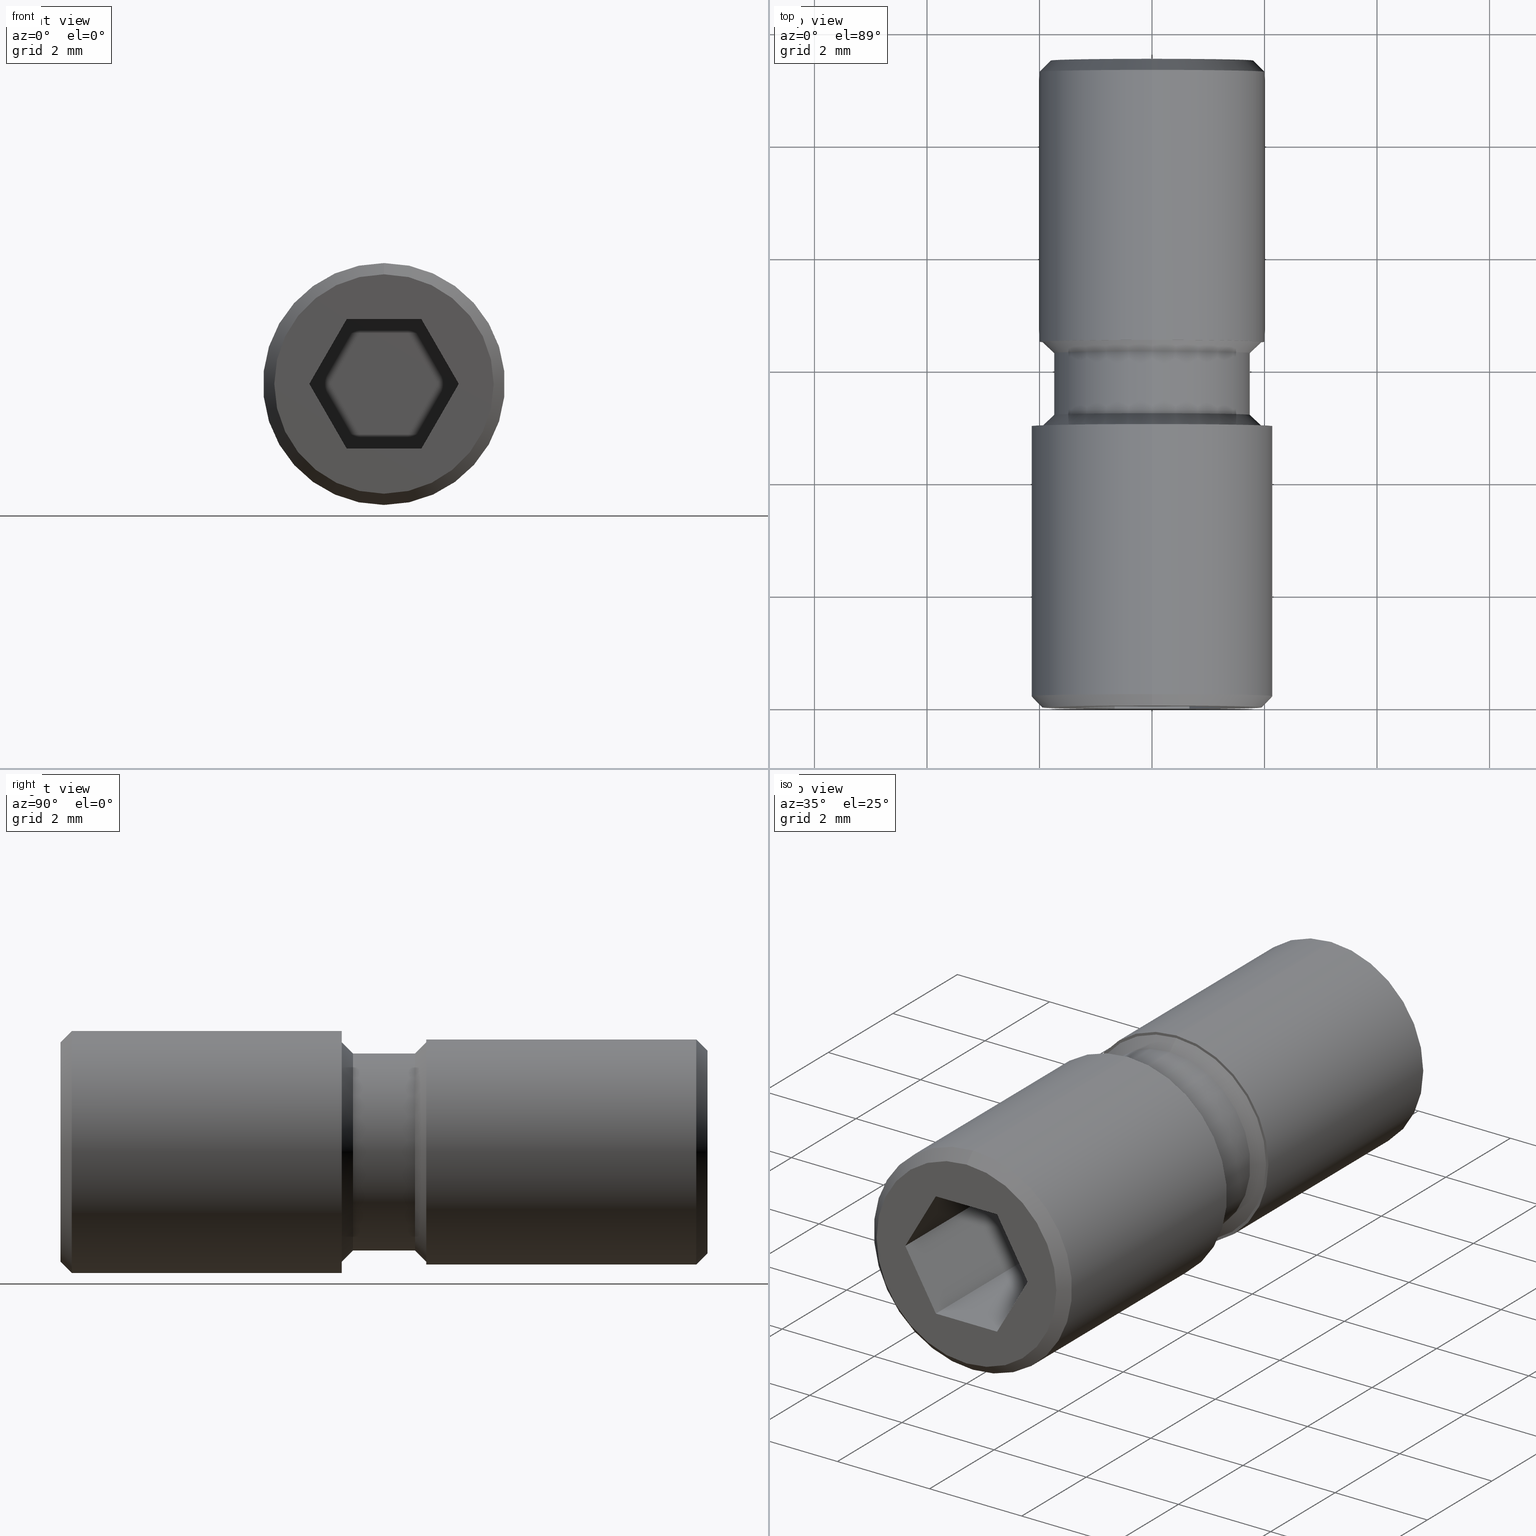
[diagram: canonical four-view strip — front | top / right | iso, engineering-drawing reading convention]
A machine part, canonical four-view strip (front | top / right | iso — engineering-drawing reading convention). The complete STEP part file that produces these views, byte-faithful:
ISO-10303-21;
HEADER;
FILE_DESCRIPTION (( 'STEP AP203' ),
    '1' );
FILE_NAME ('07SRT-6.STEP',
    '2016-04-26T01:15:53',
    ( '' ),
    ( '' ),
    'SwSTEP 2.0',
    'SolidWorks 2016',
    '' );
FILE_SCHEMA (( 'CONFIG_CONTROL_DESIGN' ));
ENDSEC;

DATA;
#1 = EDGE_CURVE ( 'NONE', #518, #161, #948, .T. ) ;
#2 = DIRECTION ( 'NONE',  ( -0.0000000000000000000, 1.000000000000000000, -0.0000000000000000000 ) ) ;
#3 = CARTESIAN_POINT ( 'NONE',  ( 0.0000000000000000000, 6.500000000000000900, 0.0000000000000000000 ) ) ;
#4 = VERTEX_POINT ( 'NONE', #877 ) ;
#5 = CARTESIAN_POINT ( 'NONE',  ( 0.0000000000000000000, 0.0000000000000000000, 0.0000000000000000000 ) ) ;
#6 = MANIFOLD_SOLID_BREP ( '�ɨ�1', #361 ) ;
#7 = ORIENTED_EDGE ( 'NONE', *, *, #404, .T. ) ;
#8 =( NAMED_UNIT ( * ) PLANE_ANGLE_UNIT ( ) SI_UNIT ( $, .RADIAN. ) );
#9 = FACE_OUTER_BOUND ( 'NONE', #190, .T. ) ;
#11 = EDGE_CURVE ( 'NONE', #690, #275, #214, .T. ) ;
#10 = CIRCLE ( 'NONE', #823, 2.149999999999999900 ) ;
#12 = LINE ( 'NONE', #406, #331 ) ;
#13 = DIRECTION ( 'NONE',  ( 0.0000000000000000000, 0.0000000000000000000, 1.000000000000000000 ) ) ;
#14 = DIRECTION ( 'NONE',  ( -1.000000000000000000, 0.0000000000000000000, 1.632950650801259500E-016 ) ) ;
#15 = FACE_OUTER_BOUND ( 'NONE', #840, .T. ) ;
#16 = LINE ( 'NONE', #836, #189 ) ;
#17 = DIRECTION ( 'NONE',  ( -0.4999999999999998300, 0.0000000000000000000, 0.8660254037844387100 ) ) ;
#18 = VECTOR ( 'NONE', #2, 1000.000000000000000 ) ;
#19 = VECTOR ( 'NONE', #894, 1000.000000000000100 ) ;
#20 = DIRECTION ( 'NONE',  ( 0.4999999999999996100, 0.0000000000000000000, -0.8660254037844388200 ) ) ;
#21 = ORIENTED_EDGE ( 'NONE', *, *, #765, .T. ) ;
#22 = AXIS2_PLACEMENT_3D ( 'NONE', #5, #459, #895 ) ;
#23 = EDGE_LOOP ( 'NONE', ( #410, #377 ) ) ;
#24 = DIRECTION ( 'NONE',  ( -0.0000000000000000000, 1.000000000000000000, -0.0000000000000000000 ) ) ;
#25 = PERSON_AND_ORGANIZATION_ROLE ( 'design_supplier' ) ;
#26 = DIRECTION ( 'NONE',  ( 8.659560562354909400E-017, -0.7071067811865493500, 0.7071067811865456900 ) ) ;
#27 = ADVANCED_FACE ( 'NONE', ( #139 ), #116, .T. ) ;
#28 = LINE ( 'NONE', #545, #885 ) ;
#29 = CARTESIAN_POINT ( 'NONE',  ( -1.327905619136139100, 8.500000000000000000, 1.526590741648259500E-016 ) ) ;
#30 = VERTEX_POINT ( 'NONE', #234 ) ;
#31 = DIRECTION ( 'NONE',  ( 0.0000000000000000000, 0.0000000000000000000, -1.000000000000000000 ) ) ;
#32 = ORIENTED_EDGE ( 'NONE', *, *, #579, .F. ) ;
#33 = DIRECTION ( 'NONE',  ( -3.265901301602519900E-016, 0.0000000000000000000, 1.000000000000000000 ) ) ;
#34 = PERSON_AND_ORGANIZATION ( #51, #880 ) ;
#35 = CIRCLE ( 'NONE', #560, 2.000000000000000000 ) ;
#36 = ADVANCED_FACE ( 'NONE', ( #249, #54 ), #223, .F. ) ;
#37 = EDGE_CURVE ( 'NONE', #517, #394, #61, .T. ) ;
#38 = VECTOR ( 'NONE', #428, 1000.000000000000000 ) ;
#39 = ORIENTED_EDGE ( 'NONE', *, *, #946, .T. ) ;
#40 = ORIENTED_EDGE ( 'NONE', *, *, #37, .F. ) ;
#41 = CARTESIAN_POINT ( 'NONE',  ( 0.0000000000000000000, 0.1999999999999987900, 2.149999999999999900 ) ) ;
#42 = EDGE_LOOP ( 'NONE', ( #718, #466, #865, #938 ) ) ;
#43 = PLANE ( 'NONE',  #220 ) ;
#44 = LINE ( 'NONE', #816, #19 ) ;
#45 = VECTOR ( 'NONE', #445, 1000.000000000000000 ) ;
#46 = EDGE_CURVE ( 'NONE', #644, #941, #648, .T. ) ;
#47 = ADVANCED_FACE ( 'NONE', ( #507, #870 ), #228, .T. ) ;
#48 = LINE ( 'NONE', #587, #821 ) ;
#49 = DIRECTION ( 'NONE',  ( 0.4999999999999998900, 0.0000000000000000000, -0.8660254037844386000 ) ) ;
#50 = EDGE_CURVE ( 'NONE', #296, #4, #849, .T. ) ;
#51 = PERSON ( 'UNSPECIFIED', 'UNSPECIFIED', 'UNSPECIFIED', ('UNSPECIFIED'), ('UNSPECIFIED'), ('UNSPECIFIED') ) ;
#52 = CARTESIAN_POINT ( 'NONE',  ( -1.327905619136139100, 3.000000000000000000, 0.0000000000000000000 ) ) ;
#53 = ORIENTED_EDGE ( 'NONE', *, *, #864, .F. ) ;
#54 = FACE_OUTER_BOUND ( 'NONE', #657, .T. ) ;
#55 = VERTEX_POINT ( 'NONE', #310 ) ;
#56 = DIRECTION ( 'NONE',  ( 0.0000000000000000000, -1.000000000000000000, 0.0000000000000000000 ) ) ;
#57 = ORIENTED_EDGE ( 'NONE', *, *, #937, .F. ) ;
#58 = AXIS2_PLACEMENT_3D ( 'NONE', #720, #205, #942 ) ;
#59 = DIRECTION ( 'NONE',  ( 0.0000000000000000000, 0.0000000000000000000, 1.000000000000000000 ) ) ;
#60 = CIRCLE ( 'NONE', #495, 1.950000000000002200 ) ;
#61 = LINE ( 'NONE', #457, #97 ) ;
#62 = DIRECTION ( 'NONE',  ( 0.0000000000000000000, 0.0000000000000000000, 1.000000000000000000 ) ) ;
#63 = ORIENTED_EDGE ( 'NONE', *, *, #37, .T. ) ;
#64 = CARTESIAN_POINT ( 'NONE',  ( -0.6639528095680691200, 8.500000000000000000, -1.150000000000000800 ) ) ;
#65 = CARTESIAN_POINT ( 'NONE',  ( 2.388061258337341600E-016, 6.500000000000000900, -1.950000000000002200 ) ) ;
#66 = VERTEX_POINT ( 'NONE', #383 ) ;
#67 = AXIS2_PLACEMENT_3D ( 'NONE', #365, #69, #866 ) ;
#68 = CIRCLE ( 'NONE', #22, 1.950000000000000400 ) ;
#69 = DIRECTION ( 'NONE',  ( 0.0000000000000000000, 1.000000000000000000, 0.0000000000000000000 ) ) ;
#70 = CARTESIAN_POINT ( 'NONE',  ( 0.0000000000000000000, 6.500000000000000900, 0.0000000000000000000 ) ) ;
#71 = LINE ( 'NONE', #621, #113 ) ;
#72 = EDGE_LOOP ( 'NONE', ( #182, #288, #283, #624 ) ) ;
#73 = CARTESIAN_POINT ( 'NONE',  ( 2.632990618166809200E-016, 0.1999999999999987900, -2.149999999999999900 ) ) ;
#74 = CARTESIAN_POINT ( 'NONE',  ( 0.0000000000000000000, 11.50000000000000000, 0.0000000000000000000 ) ) ;
#75 = ORIENTED_EDGE ( 'NONE', *, *, #278, .T. ) ;
#76 = EDGE_CURVE ( 'NONE', #344, #688, #359, .T. ) ;
#77 = DIRECTION ( 'NONE',  ( -0.4999999999999998900, 0.0000000000000000000, -0.8660254037844387100 ) ) ;
#78 = PERSON_AND_ORGANIZATION ( #51, #880 ) ;
#79 = CIRCLE ( 'NONE', #787, 2.000000000000000000 ) ;
#80 = DIRECTION ( 'NONE',  ( -0.0000000000000000000, -1.000000000000000000, -0.0000000000000000000 ) ) ;
#81 =( NAMED_UNIT ( * ) SI_UNIT ( $, .STERADIAN. ) SOLID_ANGLE_UNIT ( ) );
#82 = ORIENTED_EDGE ( 'NONE', *, *, #447, .F. ) ;
#83 = DIRECTION ( 'NONE',  ( 0.0000000000000000000, -0.0000000000000000000, 1.000000000000000000 ) ) ;
#84 = ORIENTED_EDGE ( 'NONE', *, *, #664, .F. ) ;
#85 = AXIS2_PLACEMENT_3D ( 'NONE', #244, #487, #269 ) ;
#86 = CARTESIAN_POINT ( 'NONE',  ( 0.0000000000000000000, 5.200000000000002800, 0.0000000000000000000 ) ) ;
#87 = DIRECTION ( 'NONE',  ( -0.0000000000000000000, 1.000000000000000000, -0.0000000000000000000 ) ) ;
#88 = ORIENTED_EDGE ( 'NONE', *, *, #447, .T. ) ;
#89 = DIRECTION ( 'NONE',  ( -0.0000000000000000000, -1.000000000000000000, -0.0000000000000000000 ) ) ;
#90 = VERTEX_POINT ( 'NONE', #386 ) ;
#91 = CARTESIAN_POINT ( 'NONE',  ( -1.327905619136139100, 11.50000000000000000, 1.526590741648259500E-016 ) ) ;
#92 = APPLICATION_CONTEXT ( 'configuration controlled 3d designs of mechanical parts and assemblies' ) ;
#93 = CARTESIAN_POINT ( 'NONE',  ( 1.327905619136139100, 0.0000000000000000000, -3.659182332138577500E-016 ) ) ;
#94 = COORDINATED_UNIVERSAL_TIME_OFFSET ( 8, 0, .AHEAD. ) ;
#95 = DIRECTION ( 'NONE',  ( -0.8660254037844387100, 0.0000000000000000000, -0.4999999999999998300 ) ) ;
#96 = VECTOR ( 'NONE', #117, 1000.000000000000000 ) ;
#97 = VECTOR ( 'NONE', #737, 1000.000000000000000 ) ;
#98 = VECTOR ( 'NONE', #393, 1000.000000000000000 ) ;
#99 = CARTESIAN_POINT ( 'NONE',  ( 0.0000000000000000000, 0.0000000000000000000, 0.0000000000000000000 ) ) ;
#100 = ORIENTED_EDGE ( 'NONE', *, *, #347, .F. ) ;
#101 = VECTOR ( 'NONE', #749, 1000.000000000000000 ) ;
#102 = EDGE_CURVE ( 'NONE', #775, #236, #708, .T. ) ;
#103 = DIRECTION ( 'NONE',  ( -0.0000000000000000000, -1.000000000000000000, -0.0000000000000000000 ) ) ;
#104 = DIRECTION ( 'NONE',  ( -0.0000000000000000000, 1.000000000000000000, -0.0000000000000000000 ) ) ;
#105 = ORIENTED_EDGE ( 'NONE', *, *, #46, .F. ) ;
#106 = DIRECTION ( 'NONE',  ( -0.8660254037844387100, 0.0000000000000000000, 0.4999999999999998300 ) ) ;
#107 = ADVANCED_FACE ( 'NONE', ( #135 ), #211, .T. ) ;
#108 = CONICAL_SURFACE ( 'NONE', #429, 1.950000000000002200, 0.7853981633974566100 ) ;
#109 = LINE ( 'NONE', #64, #833 ) ;
#110 = CARTESIAN_POINT ( 'NONE',  ( 0.0000000000000000000, 6.300000000000001600, -1.750000000000000000 ) ) ;
#111 = AXIS2_PLACEMENT_3D ( 'NONE', #176, #250, #13 ) ;
#112 = LINE ( 'NONE', #939, #650 ) ;
#113 = VECTOR ( 'NONE', #265, 1000.000000000000000 ) ;
#114 = DIRECTION ( 'NONE',  ( 0.5000000000000000000, 0.0000000000000000000, 0.8660254037844386000 ) ) ;
#115 = ORIENTED_EDGE ( 'NONE', *, *, #46, .T. ) ;
#116 = CYLINDRICAL_SURFACE ( 'NONE', #157, 2.000000000000000000 ) ;
#117 = DIRECTION ( 'NONE',  ( 1.000000000000000000, 0.0000000000000000000, -1.632950650801259500E-016 ) ) ;
#118 = ORIENTED_EDGE ( 'NONE', *, *, #50, .F. ) ;
#119 = ORIENTED_EDGE ( 'NONE', *, *, #278, .F. ) ;
#120 = ORIENTED_EDGE ( 'NONE', *, *, #946, .F. ) ;
#121 = VERTEX_POINT ( 'NONE', #683 ) ;
#122 = ADVANCED_FACE ( 'NONE', ( #916 ), #527, .T. ) ;
#123 = CONICAL_SURFACE ( 'NONE', #871, 1.750000000000000000, 0.7853981633974456100 ) ;
#124 = CARTESIAN_POINT ( 'NONE',  ( 2.326828918379969900E-016, 11.50000000000000000, 1.799999999999997800 ) ) ;
#125 = AXIS2_PLACEMENT_3D ( 'NONE', #882, #529, #523 ) ;
#126 = VECTOR ( 'NONE', #239, 1000.000000000000000 ) ;
#127 = FACE_OUTER_BOUND ( 'NONE', #771, .T. ) ;
#128 = VERTEX_POINT ( 'NONE', #110 ) ;
#129 = DIRECTION ( 'NONE',  ( 0.0000000000000000000, -1.000000000000000000, 0.0000000000000000000 ) ) ;
#130 = AXIS2_PLACEMENT_3D ( 'NONE', #133, #632, #928 ) ;
#131 = DIRECTION ( 'NONE',  ( -0.0000000000000000000, 1.000000000000000000, -0.0000000000000000000 ) ) ;
#132 = ORIENTED_EDGE ( 'NONE', *, *, #76, .T. ) ;
#133 = CARTESIAN_POINT ( 'NONE',  ( 0.0000000000000000000, 0.1999999999999987900, 0.0000000000000000000 ) ) ;
#134 = FACE_OUTER_BOUND ( 'NONE', #780, .T. ) ;
#135 = FACE_OUTER_BOUND ( 'NONE', #863, .T. ) ;
#136 = CIRCLE ( 'NONE', #658, 1.799999999999997800 ) ;
#137 = CARTESIAN_POINT ( 'NONE',  ( 0.0000000000000000000, 5.000000000000000000, 0.0000000000000000000 ) ) ;
#138 = VECTOR ( 'NONE', #194, 1000.000000000000000 ) ;
#139 = FACE_OUTER_BOUND ( 'NONE', #42, .T. ) ;
#140 = EDGE_LOOP ( 'NONE', ( #575, #119, #343, #82 ) ) ;
#141 = CARTESIAN_POINT ( 'NONE',  ( 0.0000000000000000000, 6.500000000000000900, 0.0000000000000000000 ) ) ;
#142 = ORIENTED_EDGE ( 'NONE', *, *, #463, .F. ) ;
#143 = VERTEX_POINT ( 'NONE', #396 ) ;
#144 = EDGE_CURVE ( 'NONE', #121, #30, #305, .T. ) ;
#145 = CARTESIAN_POINT ( 'NONE',  ( 2.632990618166809200E-016, 0.1999999999999987900, 2.149999999999999900 ) ) ;
#146 = CALENDAR_DATE ( 2016, 26, 4 ) ;
#147 = CARTESIAN_POINT ( 'NONE',  ( 1.327905619136139800, 8.500000000000000000, -2.080547780227561100E-016 ) ) ;
#148 = EDGE_CURVE ( 'NONE', #640, #232, #12, .T. ) ;
#149 = CARTESIAN_POINT ( 'NONE',  ( -0.6639528095680696800, 3.000000000000000000, 1.149999999999999900 ) ) ;
#150 = ORIENTED_EDGE ( 'NONE', *, *, #299, .T. ) ;
#151 = ORIENTED_EDGE ( 'NONE', *, *, #558, .T. ) ;
#152 = CARTESIAN_POINT ( 'NONE',  ( 0.0000000000000000000, 11.50000000000000000, -1.799999999999997800 ) ) ;
#153 = EDGE_CURVE ( 'NONE', #715, #690, #633, .T. ) ;
#154 = CARTESIAN_POINT ( 'NONE',  ( 0.0000000000000000000, 6.500000000000000900, 0.0000000000000000000 ) ) ;
#155 = CONICAL_SURFACE ( 'NONE', #270, 1.750000000000000000, 0.7853981633974456100 ) ;
#156 = VECTOR ( 'NONE', #601, 1000.000000000000000 ) ;
#157 = AXIS2_PLACEMENT_3D ( 'NONE', #590, #451, #307 ) ;
#158 = VERTEX_POINT ( 'NONE', #467 ) ;
#159 = CARTESIAN_POINT ( 'NONE',  ( -0.6639528095680696800, 3.000000000000000000, 1.149999999999999900 ) ) ;
#160 = ORIENTED_EDGE ( 'NONE', *, *, #881, .F. ) ;
#161 = VERTEX_POINT ( 'NONE', #253 ) ;
#162 = VERTEX_POINT ( 'NONE', #255 ) ;
#163 = CARTESIAN_POINT ( 'NONE',  ( 0.0000000000000000000, 6.500000000000000900, -1.750000000000000000 ) ) ;
#164 = EDGE_LOOP ( 'NONE', ( #565, #759, #892, #905 ) ) ;
#165 = EDGE_CURVE ( 'NONE', #311, #640, #652, .T. ) ;
#166 = DIRECTION ( 'NONE',  ( 0.0000000000000000000, 1.000000000000000000, 0.0000000000000000000 ) ) ;
#167 = CARTESIAN_POINT ( 'NONE',  ( -0.6639528095680701200, 3.000000000000000000, -1.149999999999999700 ) ) ;
#168 = DATE_AND_TIME ( #832, #659 ) ;
#169 = CARTESIAN_POINT ( 'NONE',  ( 2.143131898507868300E-016, 5.200000000000002800, 1.750000000000000000 ) ) ;
#170 = CARTESIAN_POINT ( 'NONE',  ( 0.0000000000000000000, 0.0000000000000000000, 0.0000000000000000000 ) ) ;
#171 = VERTEX_POINT ( 'NONE', #538 ) ;
#172 = CC_DESIGN_PERSON_AND_ORGANIZATION_ASSIGNMENT ( #78, #810, ( #934 ) ) ;
#173 = ORIENTED_EDGE ( 'NONE', *, *, #746, .F. ) ;
#174 = CARTESIAN_POINT ( 'NONE',  ( -0.6639528095680701200, 3.000000000000000000, -1.149999999999999700 ) ) ;
#175 = CARTESIAN_POINT ( 'NONE',  ( -0.6639528095680696800, 3.000000000000000000, 1.149999999999999900 ) ) ;
#176 = CARTESIAN_POINT ( 'NONE',  ( 0.0000000000000000000, 0.1999999999999987900, 0.0000000000000000000 ) ) ;
#177 = CARTESIAN_POINT ( 'NONE',  ( 0.6639528095680696800, 3.000000000000000000, -1.149999999999999900 ) ) ;
#178 = VECTOR ( 'NONE', #676, 1000.000000000000200 ) ;
#179 = EDGE_CURVE ( 'NONE', #615, #275, #703, .T. ) ;
#180 = EDGE_LOOP ( 'NONE', ( #206, #313 ) ) ;
#181 = CARTESIAN_POINT ( 'NONE',  ( 0.0000000000000000000, 5.200000000000002800, 0.0000000000000000000 ) ) ;
#182 = ORIENTED_EDGE ( 'NONE', *, *, #537, .T. ) ;
#183 = ADVANCED_FACE ( 'NONE', ( #127 ), #663, .T. ) ;
#184 = VERTEX_POINT ( 'NONE', #479 ) ;
#185 = PLANE ( 'NONE',  #193 ) ;
#186 = COORDINATED_UNIVERSAL_TIME_OFFSET ( 8, 0, .AHEAD. ) ;
#187 = DIRECTION ( 'NONE',  ( 1.000000000000000000, 0.0000000000000000000, 3.265901301602519900E-016 ) ) ;
#188 = ADVANCED_FACE ( 'NONE', ( #675 ), #757, .F. ) ;
#189 = VECTOR ( 'NONE', #927, 1000.000000000000000 ) ;
#190 = EDGE_LOOP ( 'NONE', ( #217, #573, #815, #714 ) ) ;
#191 = ORIENTED_EDGE ( 'NONE', *, *, #881, .T. ) ;
#192 = VECTOR ( 'NONE', #104, 1000.000000000000000 ) ;
#193 = AXIS2_PLACEMENT_3D ( 'NONE', #263, #421, #924 ) ;
#194 = DIRECTION ( 'NONE',  ( -0.4999999999999998900, 0.0000000000000000000, -0.8660254037844387100 ) ) ;
#195 = DIRECTION ( 'NONE',  ( 0.4999999999999998300, 0.0000000000000000000, 0.8660254037844387100 ) ) ;
#196 = EDGE_LOOP ( 'NONE', ( #309, #932, #711, #930 ) ) ;
#197 = DATE_AND_TIME ( #912, #430 ) ;
#198 = EDGE_CURVE ( 'NONE', #783, #398, #606, .T. ) ;
#199 = DIRECTION ( 'NONE',  ( 0.0000000000000000000, 0.0000000000000000000, -1.000000000000000000 ) ) ;
#200 = CARTESIAN_POINT ( 'NONE',  ( -1.327905619136139100, 8.500000000000000000, 1.526590741648259500E-016 ) ) ;
#201 = CARTESIAN_POINT ( 'NONE',  ( 0.6639528095680703500, 8.500000000000000000, -1.150000000000000100 ) ) ;
#202 = ORIENTED_EDGE ( 'NONE', *, *, #638, .T. ) ;
#203 = ORIENTED_EDGE ( 'NONE', *, *, #482, .F. ) ;
#204 = AXIS2_PLACEMENT_3D ( 'NONE', #475, #747, #825 ) ;
#205 = DIRECTION ( 'NONE',  ( 0.0000000000000000000, -1.000000000000000000, 0.0000000000000000000 ) ) ;
#206 = ORIENTED_EDGE ( 'NONE', *, *, #619, .T. ) ;
#207 = DIRECTION ( 'NONE',  ( 1.000000000000000000, 0.0000000000000000000, -1.632950650801259500E-016 ) ) ;
#208 = CARTESIAN_POINT ( 'NONE',  ( 2.143131898507868300E-016, 6.300000000000001600, 1.750000000000000000 ) ) ;
#209 = VECTOR ( 'NONE', #581, 1000.000000000000100 ) ;
#210 = VECTOR ( 'NONE', #910, 1000.000000000000100 ) ;
#211 = CYLINDRICAL_SURFACE ( 'NONE', #501, 1.750000000000000000 ) ;
#212 = EDGE_CURVE ( 'NONE', #143, #724, #272, .T. ) ;
#213 = VECTOR ( 'NONE', #847, 1000.000000000000100 ) ;
#214 = LINE ( 'NONE', #460, #18 ) ;
#215 = DIRECTION ( 'NONE',  ( -1.000000000000000000, 0.0000000000000000000, 1.632950650801259500E-016 ) ) ;
#216 = VECTOR ( 'NONE', #294, 1000.000000000000100 ) ;
#217 = ORIENTED_EDGE ( 'NONE', *, *, #419, .F. ) ;
#218 = APPROVAL ( #326, 'UNSPECIFIED' ) ;
#219 = CARTESIAN_POINT ( 'NONE',  ( 2.449293598294706400E-016, 11.50000000000000000, 2.000000000000000000 ) ) ;
#220 = AXIS2_PLACEMENT_3D ( 'NONE', #551, #494, #195 ) ;
#221 = LINE ( 'NONE', #259, #138 ) ;
#222 = CARTESIAN_POINT ( 'NONE',  ( 0.6639528095680696800, 8.500000000000000000, 1.150000000000000600 ) ) ;
#223 = PLANE ( 'NONE',  #534 ) ;
#224 = ORIENTED_EDGE ( 'NONE', *, *, #336, .T. ) ;
#225 = EDGE_CURVE ( 'NONE', #143, #803, #321, .T. ) ;
#226 = DIRECTION ( 'NONE',  ( 0.0000000000000000000, 0.0000000000000000000, -1.000000000000000000 ) ) ;
#227 = FACE_OUTER_BOUND ( 'NONE', #691, .T. ) ;
#228 = PLANE ( 'NONE',  #293 ) ;
#229 = CIRCLE ( 'NONE', #858, 1.750000000000000000 ) ;
#230 = DIRECTION ( 'NONE',  ( 0.0000000000000000000, 0.0000000000000000000, 1.000000000000000000 ) ) ;
#231 = AXIS2_PLACEMENT_3D ( 'NONE', #181, #24, #907 ) ;
#232 = VERTEX_POINT ( 'NONE', #901 ) ;
#233 = EDGE_LOOP ( 'NONE', ( #826, #922, #142, #532, #782, #829 ) ) ;
#234 = CARTESIAN_POINT ( 'NONE',  ( 2.510525938252074200E-016, 0.0000000000000000000, -1.950000000000000400 ) ) ;
#235 = DIRECTION ( 'NONE',  ( -0.0000000000000000000, 1.000000000000000000, -0.0000000000000000000 ) ) ;
#236 = VERTEX_POINT ( 'NONE', #471 ) ;
#237 = CARTESIAN_POINT ( 'NONE',  ( 2.388061258337341600E-016, 6.500000000000000900, -1.950000000000002200 ) ) ;
#238 = ORIENTED_EDGE ( 'NONE', *, *, #198, .F. ) ;
#239 = DIRECTION ( 'NONE',  ( -1.000000000000000000, 0.0000000000000000000, -4.898851952403779800E-016 ) ) ;
#240 = DIRECTION ( 'NONE',  ( -0.0000000000000000000, -1.000000000000000000, -0.0000000000000000000 ) ) ;
#241 = AXIS2_PLACEMENT_3D ( 'NONE', #818, #616, #324 ) ;
#242 = DIRECTION ( 'NONE',  ( 0.0000000000000000000, -0.0000000000000000000, 1.000000000000000000 ) ) ;
#243 = VECTOR ( 'NONE', #839, 1000.000000000000000 ) ;
#244 = CARTESIAN_POINT ( 'NONE',  ( 0.0000000000000000000, 0.0000000000000000000, 0.0000000000000000000 ) ) ;
#245 = CARTESIAN_POINT ( 'NONE',  ( 1.327905619136139100, 3.000000000000000000, -3.659182332138577500E-016 ) ) ;
#246 = FACE_OUTER_BOUND ( 'NONE', #681, .T. ) ;
#247 = EDGE_CURVE ( 'NONE', #171, #236, #872, .T. ) ;
#248 = ORIENTED_EDGE ( 'NONE', *, *, #144, .T. ) ;
#249 = FACE_BOUND ( 'NONE', #531, .T. ) ;
#250 = DIRECTION ( 'NONE',  ( -0.0000000000000000000, 1.000000000000000000, -0.0000000000000000000 ) ) ;
#251 = SECURITY_CLASSIFICATION_LEVEL ( 'unclassified' ) ;
#252 = ORIENTED_EDGE ( 'NONE', *, *, #368, .T. ) ;
#253 = CARTESIAN_POINT ( 'NONE',  ( 0.0000000000000000000, 6.500000000000000900, -2.000000000000000000 ) ) ;
#254 = EDGE_LOOP ( 'NONE', ( #360, #238, #889, #734 ) ) ;
#255 = CARTESIAN_POINT ( 'NONE',  ( 0.6639528095680696800, 11.50000000000000000, 1.150000000000000600 ) ) ;
#256 = AXIS2_PLACEMENT_3D ( 'NONE', #400, #235, #697 ) ;
#257 = ADVANCED_FACE ( 'NONE', ( #246, #756 ), #533, .F. ) ;
#258 = CIRCLE ( 'NONE', #739, 2.000000000000000000 ) ;
#259 = CARTESIAN_POINT ( 'NONE',  ( 1.327905619136139800, 8.500000000000000000, -2.080547780227561100E-016 ) ) ;
#260 = ORIENTED_EDGE ( 'NONE', *, *, #853, .F. ) ;
#261 = EDGE_CURVE ( 'NONE', #715, #615, #578, .T. ) ;
#262 = ORIENTED_EDGE ( 'NONE', *, *, #704, .T. ) ;
#263 = CARTESIAN_POINT ( 'NONE',  ( 0.6639528095680696800, 3.000000000000000000, -1.149999999999999900 ) ) ;
#264 = ORIENTED_EDGE ( 'NONE', *, *, #696, .F. ) ;
#265 = DIRECTION ( 'NONE',  ( -0.0000000000000000000, 1.000000000000000000, -0.0000000000000000000 ) ) ;
#266 = ADVANCED_FACE ( 'NONE', ( #620 ), #702, .F. ) ;
#267 = FACE_OUTER_BOUND ( 'NONE', #382, .T. ) ;
#268 = FACE_OUTER_BOUND ( 'NONE', #180, .T. ) ;
#269 = DIRECTION ( 'NONE',  ( 0.0000000000000000000, -0.0000000000000000000, 1.000000000000000000 ) ) ;
#270 = AXIS2_PLACEMENT_3D ( 'NONE', #661, #744, #226 ) ;
#271 = EDGE_CURVE ( 'NONE', #690, #583, #280, .T. ) ;
#272 = LINE ( 'NONE', #610, #156 ) ;
#273 = AXIS2_PLACEMENT_3D ( 'NONE', #511, #281, #510 ) ;
#274 = CARTESIAN_POINT ( 'NONE',  ( -0.6639528095680691200, 8.500000000000000000, -1.150000000000000800 ) ) ;
#275 = VERTEX_POINT ( 'NONE', #493 ) ;
#276 = PLANE ( 'NONE',  #629 ) ;
#278 = EDGE_CURVE ( 'NONE', #436, #128, #229, .T. ) ;
#277 = VECTOR ( 'NONE', #499, 1000.000000000000000 ) ;
#279 = DIRECTION ( 'NONE',  ( 0.0000000000000000000, 1.000000000000000000, 0.0000000000000000000 ) ) ;
#280 = LINE ( 'NONE', #921, #802 ) ;
#281 = DIRECTION ( 'NONE',  ( 0.0000000000000000000, -1.000000000000000000, 0.0000000000000000000 ) ) ;
#282 = EDGE_LOOP ( 'NONE', ( #886, #903 ) ) ;
#283 = ORIENTED_EDGE ( 'NONE', *, *, #923, .F. ) ;
#284 = ORIENTED_EDGE ( 'NONE', *, *, #419, .T. ) ;
#285 = ORIENTED_EDGE ( 'NONE', *, *, #179, .F. ) ;
#286 = DIRECTION ( 'NONE',  ( 0.0000000000000000000, -0.0000000000000000000, 1.000000000000000000 ) ) ;
#287 = CARTESIAN_POINT ( 'NONE',  ( 0.6639528095680703500, 11.50000000000000000, -1.150000000000000100 ) ) ;
#288 = ORIENTED_EDGE ( 'NONE', *, *, #368, .F. ) ;
#289 = CARTESIAN_POINT ( 'NONE',  ( -0.6639528095680696800, 11.50000000000000000, 1.150000000000000100 ) ) ;
#290 = APPROVAL_PERSON_ORGANIZATION ( #914, #218, #600 ) ;
#291 = VECTOR ( 'NONE', #595, 1000.000000000000100 ) ;
#292 = DIRECTION ( 'NONE',  ( 0.0000000000000000000, 0.0000000000000000000, 1.000000000000000000 ) ) ;
#293 = AXIS2_PLACEMENT_3D ( 'NONE', #74, #808, #83 ) ;
#294 = DIRECTION ( 'NONE',  ( 0.0000000000000000000, -0.7071067811865506800, -0.7071067811865443500 ) ) ;
#295 = VECTOR ( 'NONE', #484, 1000.000000000000000 ) ;
#296 = VERTEX_POINT ( 'NONE', #627 ) ;
#297 = ORIENTED_EDGE ( 'NONE', *, *, #682, .T. ) ;
#298 = DIRECTION ( 'NONE',  ( -0.0000000000000000000, -1.000000000000000000, -0.0000000000000000000 ) ) ;
#299 = EDGE_CURVE ( 'NONE', #775, #783, #852, .T. ) ;
#300 = ORIENTED_EDGE ( 'NONE', *, *, #179, .T. ) ;
#301 = PRODUCT_DEFINITION_SHAPE ( 'NONE', 'NONE',  #773 ) ;
#302 = DIRECTION ( 'NONE',  ( 0.0000000000000000000, -1.000000000000000000, 0.0000000000000000000 ) ) ;
#303 = LOCAL_TIME ( 9, 15, 53.00000000000000000, #684 ) ;
#304 = FACE_OUTER_BOUND ( 'NONE', #426, .T. ) ;
#305 = CIRCLE ( 'NONE', #327, 1.950000000000000400 ) ;
#306 = LINE ( 'NONE', #316, #98 ) ;
#307 = DIRECTION ( 'NONE',  ( 0.0000000000000000000, 0.0000000000000000000, -1.000000000000000000 ) ) ;
#308 = DIRECTION ( 'NONE',  ( 0.0000000000000000000, 0.0000000000000000000, 1.000000000000000000 ) ) ;
#309 = ORIENTED_EDGE ( 'NONE', *, *, #247, .T. ) ;
#310 = CARTESIAN_POINT ( 'NONE',  ( 1.327905619136139800, 11.50000000000000000, -2.080547780227561100E-016 ) ) ;
#311 = VERTEX_POINT ( 'NONE', #353 ) ;
#312 = MECHANICAL_CONTEXT ( 'NONE', #92, 'mechanical' ) ;
#313 = ORIENTED_EDGE ( 'NONE', *, *, #498, .T. ) ;
#314 = EDGE_CURVE ( 'NONE', #724, #171, #28, .T. ) ;
#315 = DIRECTION ( 'NONE',  ( 0.8660254037844388200, -0.0000000000000000000, 0.4999999999999996100 ) ) ;
#316 = CARTESIAN_POINT ( 'NONE',  ( -0.6639528095680691200, 11.50000000000000000, -1.150000000000000800 ) ) ;
#317 = CARTESIAN_POINT ( 'NONE',  ( 0.0000000000000000000, 11.29999999999999500, -2.000000000000000000 ) ) ;
#318 = CIRCLE ( 'NONE', #130, 2.149999999999999900 ) ;
#319 = CARTESIAN_POINT ( 'NONE',  ( 0.0000000000000000000, 5.000000000000000000, -2.149999999999999900 ) ) ;
#320 = AXIS2_PLACEMENT_3D ( 'NONE', #801, #441, #876 ) ;
#321 = LINE ( 'NONE', #177, #710 ) ;
#322 = CARTESIAN_POINT ( 'NONE',  ( 0.6639528095680703500, 8.500000000000000000, -1.150000000000000100 ) ) ;
#323 = EDGE_LOOP ( 'NONE', ( #486, #118, #260, #693 ) ) ;
#324 = DIRECTION ( 'NONE',  ( 0.0000000000000000000, 0.0000000000000000000, -1.000000000000000000 ) ) ;
#325 = CARTESIAN_POINT ( 'NONE',  ( 0.6639528095680696800, 8.500000000000000000, 1.150000000000000600 ) ) ;
#326 = APPROVAL_STATUS ( 'not_yet_approved' ) ;
#327 = AXIS2_PLACEMENT_3D ( 'NONE', #99, #103, #540 ) ;
#328 = ADVANCED_FACE ( 'NONE', ( #789 ), #589, .T. ) ;
#329 = APPROVAL_ROLE ( '' ) ;
#330 = LINE ( 'NONE', #455, #767 ) ;
#331 = VECTOR ( 'NONE', #26, 1000.000000000000100 ) ;
#332 = DIRECTION ( 'NONE',  ( 0.5000000000000000000, 0.0000000000000000000, 0.8660254037844386000 ) ) ;
#333 = DATE_TIME_ROLE ( 'creation_date' ) ;
#334 = ADVANCED_FACE ( 'NONE', ( #335 ), #185, .F. ) ;
#335 = FACE_OUTER_BOUND ( 'NONE', #598, .T. ) ;
#336 = EDGE_CURVE ( 'NONE', #796, #804, #221, .T. ) ;
#337 = DIRECTION ( 'NONE',  ( 0.4999999999999998900, 0.0000000000000000000, 0.8660254037844387100 ) ) ;
#338 = ORIENTED_EDGE ( 'NONE', *, *, #591, .T. ) ;
#339 = ORIENTED_EDGE ( 'NONE', *, *, #906, .F. ) ;
#340 = ORIENTED_EDGE ( 'NONE', *, *, #452, .F. ) ;
#341 = ORIENTED_EDGE ( 'NONE', *, *, #906, .T. ) ;
#342 = CARTESIAN_POINT ( 'NONE',  ( 0.6639528095680701200, 3.000000000000000000, 1.149999999999999700 ) ) ;
#343 = ORIENTED_EDGE ( 'NONE', *, *, #566, .T. ) ;
#344 = VERTEX_POINT ( 'NONE', #124 ) ;
#345 = CARTESIAN_POINT ( 'NONE',  ( 0.0000000000000000000, 11.50000000000000000, 0.0000000000000000000 ) ) ;
#346 = CARTESIAN_POINT ( 'NONE',  ( -0.6639528095680696800, 8.500000000000000000, 1.150000000000000100 ) ) ;
#347 = EDGE_CURVE ( 'NONE', #583, #162, #71, .T. ) ;
#348 = LOCAL_TIME ( 9, 15, 53.00000000000000000, #94 ) ;
#349 = CARTESIAN_POINT ( 'NONE',  ( 0.6639528095680696800, 0.0000000000000000000, -1.149999999999999900 ) ) ;
#350 = CARTESIAN_POINT ( 'NONE',  ( 0.0000000000000000000, 5.000000000000000000, 0.0000000000000000000 ) ) ;
#351 = EDGE_CURVE ( 'NONE', #436, #640, #474, .T. ) ;
#352 = ORIENTED_EDGE ( 'NONE', *, *, #375, .T. ) ;
#353 = CARTESIAN_POINT ( 'NONE',  ( 0.0000000000000000000, 5.200000000000002800, -1.750000000000000000 ) ) ;
#354 = ADVANCED_FACE ( 'NONE', ( #687 ), #777, .F. ) ;
#355 = ORIENTED_EDGE ( 'NONE', *, *, #830, .F. ) ;
#356 = DIRECTION ( 'NONE',  ( -0.0000000000000000000, -1.000000000000000000, -0.0000000000000000000 ) ) ;
#357 = EDGE_CURVE ( 'NONE', #55, #450, #945, .T. ) ;
#358 = LINE ( 'NONE', #891, #741 ) ;
#359 = LINE ( 'NONE', #656, #743 ) ;
#360 = ORIENTED_EDGE ( 'NONE', *, *, #899, .T. ) ;
#361 = CLOSED_SHELL ( 'NONE', ( #913, #919, #485, #694, #27, #107, #427, #328, #828, #257, #183, #122, #47, #36, #546, #354, #266, #700, #680, #407, #542, #402, #188, #422, #686, #334, #764, #929, #539, #758, #488, #835 ) ) ;
#362 = AXIS2_PLACEMENT_3D ( 'NONE', #599, #603, #242 ) ;
#363 = DIRECTION ( 'NONE',  ( -1.000000000000000000, 0.0000000000000000000, -4.898851952403779800E-016 ) ) ;
#364 = ORIENTED_EDGE ( 'NONE', *, *, #794, .F. ) ;
#365 = CARTESIAN_POINT ( 'NONE',  ( 0.0000000000000000000, 6.500000000000000900, 0.0000000000000000000 ) ) ;
#366 = DIRECTION ( 'NONE',  ( 0.0000000000000000000, 1.000000000000000000, 0.0000000000000000000 ) ) ;
#367 = DATE_AND_TIME ( #515, #348 ) ;
#368 = EDGE_CURVE ( 'NONE', #796, #55, #390, .T. ) ;
#369 = VECTOR ( 'NONE', #524, 1000.000000000000000 ) ;
#370 = DIRECTION ( 'NONE',  ( 0.0000000000000000000, -1.000000000000000000, 0.0000000000000000000 ) ) ;
#371 = DIRECTION ( 'NONE',  ( 1.000000000000000000, 0.0000000000000000000, 3.265901301602519900E-016 ) ) ;
#372 = ORIENTED_EDGE ( 'NONE', *, *, #809, .T. ) ;
#373 = ORIENTED_EDGE ( 'NONE', *, *, #404, .F. ) ;
#374 = PLANE ( 'NONE',  #490 ) ;
#375 = EDGE_CURVE ( 'NONE', #392, #715, #16, .T. ) ;
#376 = DIRECTION ( 'NONE',  ( 0.0000000000000000000, 0.0000000000000000000, 1.000000000000000000 ) ) ;
#377 = ORIENTED_EDGE ( 'NONE', *, *, #830, .T. ) ;
#378 =( LENGTH_UNIT ( ) NAMED_UNIT ( * ) SI_UNIT ( .MILLI., .METRE. ) );
#379 = ORIENTED_EDGE ( 'NONE', *, *, #645, .T. ) ;
#380 = CARTESIAN_POINT ( 'NONE',  ( 0.0000000000000000000, 5.000000000000000000, -2.149999999999999900 ) ) ;
#381 = EDGE_CURVE ( 'NONE', #121, #394, #824, .T. ) ;
#382 = EDGE_LOOP ( 'NONE', ( #53, #411, #489, #873 ) ) ;
#383 = CARTESIAN_POINT ( 'NONE',  ( 0.0000000000000000000, 5.000000000000000000, -1.950000000000002200 ) ) ;
#384 = DIRECTION ( 'NONE',  ( -0.0000000000000000000, 1.000000000000000000, -0.0000000000000000000 ) ) ;
#385 = PERSON_AND_ORGANIZATION ( #51, #880 ) ;
#386 = CARTESIAN_POINT ( 'NONE',  ( 0.0000000000000000000, 11.50000000000000000, -1.799999999999997800 ) ) ;
#387 = CONICAL_SURFACE ( 'NONE', #273, 1.799999999999997800, 0.7853981633974439500 ) ;
#388 = AXIS2_PLACEMENT_3D ( 'NONE', #350, #850, #550 ) ;
#389 = CARTESIAN_POINT ( 'NONE',  ( 2.632990618166809200E-016, 5.000000000000000000, 2.149999999999999900 ) ) ;
#390 = LINE ( 'NONE', #766, #770 ) ;
#391 = CARTESIAN_POINT ( 'NONE',  ( -0.6639528095680696800, 3.000000000000000000, 1.149999999999999900 ) ) ;
#392 = VERTEX_POINT ( 'NONE', #274 ) ;
#393 = DIRECTION ( 'NONE',  ( -0.4999999999999998300, 0.0000000000000000000, 0.8660254037844387100 ) ) ;
#394 = VERTEX_POINT ( 'NONE', #145 ) ;
#395 = FACE_OUTER_BOUND ( 'NONE', #572, .T. ) ;
#396 = CARTESIAN_POINT ( 'NONE',  ( 0.6639528095680696800, 3.000000000000000000, -1.149999999999999900 ) ) ;
#398 = VERTEX_POINT ( 'NONE', #935 ) ;
#397 = PRODUCT_RELATED_PRODUCT_CATEGORY ( 'detail', '', ( #934 ) ) ;
#399 = AXIS2_PLACEMENT_3D ( 'NONE', #201, #788, #363 ) ;
#400 = CARTESIAN_POINT ( 'NONE',  ( 0.0000000000000000000, 0.1999999999999987900, 0.0000000000000000000 ) ) ;
#401 = PERSON_AND_ORGANIZATION_ROLE ( 'creator' ) ;
#402 = ADVANCED_FACE ( 'NONE', ( #585 ), #276, .F. ) ;
#403 = FACE_OUTER_BOUND ( 'NONE', #196, .T. ) ;
#404 = EDGE_CURVE ( 'NONE', #161, #184, #35, .T. ) ;
#405 = DIRECTION ( 'NONE',  ( 0.0000000000000000000, 0.0000000000000000000, 1.000000000000000000 ) ) ;
#406 = CARTESIAN_POINT ( 'NONE',  ( 2.143131898507868300E-016, 5.200000000000002800, 1.750000000000000000 ) ) ;
#407 = ADVANCED_FACE ( 'NONE', ( #134 ), #855, .F. ) ;
#408 = ORIENTED_EDGE ( 'NONE', *, *, #654, .T. ) ;
#409 = PERSON_AND_ORGANIZATION_ROLE ( 'classification_officer' ) ;
#410 = ORIENTED_EDGE ( 'NONE', *, *, #933, .T. ) ;
#411 = ORIENTED_EDGE ( 'NONE', *, *, #148, .T. ) ;
#412 = DIRECTION ( 'NONE',  ( -0.0000000000000000000, -1.000000000000000000, -0.0000000000000000000 ) ) ;
#413 = AXIS2_PLACEMENT_3D ( 'NONE', #345, #420, #841 ) ;
#414 = CIRCLE ( 'NONE', #626, 2.000000000000000000 ) ;
#415 = FACE_OUTER_BOUND ( 'NONE', #140, .T. ) ;
#416 = DIRECTION ( 'NONE',  ( 1.000000000000000000, 0.0000000000000000000, 3.265901301602519900E-016 ) ) ;
#417 = VECTOR ( 'NONE', #699, 1000.000000000000000 ) ;
#418 = CC_DESIGN_APPROVAL ( #548, ( #628 ) ) ;
#419 = EDGE_CURVE ( 'NONE', #128, #436, #618, .T. ) ;
#420 = DIRECTION ( 'NONE',  ( 0.0000000000000000000, 1.000000000000000000, 0.0000000000000000000 ) ) ;
#421 = DIRECTION ( 'NONE',  ( 0.8660254037844387100, 0.0000000000000000000, -0.5000000000000001100 ) ) ;
#422 = ADVANCED_FACE ( 'NONE', ( #685 ), #639, .F. ) ;
#423 = EDGE_LOOP ( 'NONE', ( #224, #191, #352, #940, #844, #556 ) ) ;
#424 = ORIENTED_EDGE ( 'NONE', *, *, #50, .T. ) ;
#425 = DIRECTION ( 'NONE',  ( 0.8660254037844387100, 0.0000000000000000000, 0.4999999999999999400 ) ) ;
#426 = EDGE_LOOP ( 'NONE', ( #713, #84, #372, #339 ) ) ;
#427 = ADVANCED_FACE ( 'NONE', ( #786 ), #707, .T. ) ;
#428 = DIRECTION ( 'NONE',  ( -1.000000000000000000, 0.0000000000000000000, 1.632950650801259500E-016 ) ) ;
#429 = AXIS2_PLACEMENT_3D ( 'NONE', #3, #514, #735 ) ;
#430 = LOCAL_TIME ( 9, 15, 53.00000000000000000, #512 ) ;
#431 = CIRCLE ( 'NONE', #612, 2.149999999999999900 ) ;
#432 = EDGE_CURVE ( 'NONE', #518, #688, #258, .T. ) ;
#433 = DIRECTION ( 'NONE',  ( -0.4999999999999997200, 0.0000000000000000000, 0.8660254037844388200 ) ) ;
#434 = AXIS2_PLACEMENT_3D ( 'NONE', #842, #425, #49 ) ;
#435 = DIRECTION ( 'NONE',  ( -0.0000000000000000000, 1.000000000000000000, -0.0000000000000000000 ) ) ;
#436 = VERTEX_POINT ( 'NONE', #208 ) ;
#437 = CARTESIAN_POINT ( 'NONE',  ( 0.0000000000000000000, 0.1999999999999987900, 0.0000000000000000000 ) ) ;
#438 = ORIENTED_EDGE ( 'NONE', *, *, #558, .F. ) ;
#439 = EDGE_CURVE ( 'NONE', #392, #503, #109, .T. ) ;
#440 = LINE ( 'NONE', #222, #209 ) ;
#441 = DIRECTION ( 'NONE',  ( -0.0000000000000000000, -1.000000000000000000, -0.0000000000000000000 ) ) ;
#442 = VECTOR ( 'NONE', #898, 1000.000000000000000 ) ;
#443 = AXIS2_PLACEMENT_3D ( 'NONE', #559, #859, #643 ) ;
#444 = CARTESIAN_POINT ( 'NONE',  ( -0.6639528095680701200, 3.000000000000000000, -1.149999999999999700 ) ) ;
#445 = DIRECTION ( 'NONE',  ( -0.0000000000000000000, -1.000000000000000000, -0.0000000000000000000 ) ) ;
#446 = DESIGN_CONTEXT ( 'detailed design', #817, 'design' ) ;
#447 = EDGE_CURVE ( 'NONE', #854, #562, #60, .T. ) ;
#448 = LINE ( 'NONE', #742, #243 ) ;
#449 = CONICAL_SURFACE ( 'NONE', #256, 2.149999999999999900, 0.7853981633974505000 ) ;
#450 = VERTEX_POINT ( 'NONE', #287 ) ;
#451 = DIRECTION ( 'NONE',  ( -0.0000000000000000000, -1.000000000000000000, -0.0000000000000000000 ) ) ;
#452 = EDGE_CURVE ( 'NONE', #394, #941, #861, .T. ) ;
#453 = CIRCLE ( 'NONE', #67, 1.950000000000002200 ) ;
#454 = EDGE_LOOP ( 'NONE', ( #564, #63, #843, #105 ) ) ;
#455 = CARTESIAN_POINT ( 'NONE',  ( 0.6639528095680701200, 0.0000000000000000000, 1.149999999999999700 ) ) ;
#456 = EDGE_LOOP ( 'NONE', ( #297, #544, #761, #763 ) ) ;
#457 = CARTESIAN_POINT ( 'NONE',  ( 2.632990618166809200E-016, 5.000000000000000000, 2.149999999999999900 ) ) ;
#458 = CONICAL_SURFACE ( 'NONE', #837, 1.950000000000002200, 0.7853981633974566100 ) ;
#459 = DIRECTION ( 'NONE',  ( -0.0000000000000000000, -1.000000000000000000, -0.0000000000000000000 ) ) ;
#460 = CARTESIAN_POINT ( 'NONE',  ( -0.6639528095680696800, 8.500000000000000000, 1.150000000000000100 ) ) ;
#461 = ORIENTED_EDGE ( 'NONE', *, *, #432, .F. ) ;
#462 = ORIENTED_EDGE ( 'NONE', *, *, #645, .F. ) ;
#463 = EDGE_CURVE ( 'NONE', #398, #4, #480, .T. ) ;
#464 = CARTESIAN_POINT ( 'NONE',  ( 0.0000000000000000000, 5.200000000000002800, -1.750000000000000000 ) ) ;
#465 = CARTESIAN_POINT ( 'NONE',  ( 0.0000000000000000000, 11.29999999999999500, 0.0000000000000000000 ) ) ;
#466 = ORIENTED_EDGE ( 'NONE', *, *, #794, .T. ) ;
#467 = CARTESIAN_POINT ( 'NONE',  ( -0.6639528095680701200, 0.0000000000000000000, -1.149999999999999900 ) ) ;
#468 = CARTESIAN_POINT ( 'NONE',  ( 0.0000000000000000000, 6.500000000000000900, 1.950000000000002200 ) ) ;
#469 = DIRECTION ( 'NONE',  ( 0.0000000000000000000, 0.0000000000000000000, 1.000000000000000000 ) ) ;
#470 = FACE_BOUND ( 'NONE', #23, .T. ) ;
#471 = CARTESIAN_POINT ( 'NONE',  ( 0.6639528095680701200, 0.0000000000000000000, 1.149999999999999700 ) ) ;
#472 = CARTESIAN_POINT ( 'NONE',  ( -0.6639528095680696800, 8.500000000000000000, 1.150000000000000100 ) ) ;
#473 = AXIS2_PLACEMENT_3D ( 'NONE', #167, #302, #805 ) ;
#474 = LINE ( 'NONE', #772, #862 ) ;
#475 = CARTESIAN_POINT ( 'NONE',  ( 1.327905619136139800, 8.500000000000000000, -2.080547780227561100E-016 ) ) ;
#476 = ORIENTED_EDGE ( 'NONE', *, *, #853, .T. ) ;
#477 = AXIS2_PLACEMENT_3D ( 'NONE', #437, #435, #59 ) ;
#478 = ORIENTED_EDGE ( 'NONE', *, *, #165, .F. ) ;
#479 = CARTESIAN_POINT ( 'NONE',  ( 2.449293598294706400E-016, 6.500000000000000900, 2.000000000000000000 ) ) ;
#480 = LINE ( 'NONE', #634, #277 ) ;
#481 = APPLICATION_PROTOCOL_DEFINITION ( 'international standard', 'config_control_design', 1994, #817 ) ;
#482 = EDGE_CURVE ( 'NONE', #184, #161, #79, .T. ) ;
#483 = FACE_OUTER_BOUND ( 'NONE', #456, .T. ) ;
#484 = DIRECTION ( 'NONE',  ( -0.0000000000000000000, 1.000000000000000000, -0.0000000000000000000 ) ) ;
#485 = ADVANCED_FACE ( 'NONE', ( #227 ), #729, .T. ) ;
#486 = ORIENTED_EDGE ( 'NONE', *, *, #463, .T. ) ;
#487 = DIRECTION ( 'NONE',  ( 0.0000000000000000000, 1.000000000000000000, 0.0000000000000000000 ) ) ;
#488 = ADVANCED_FACE ( 'NONE', ( #415 ), #458, .T. ) ;
#489 = ORIENTED_EDGE ( 'NONE', *, *, #933, .F. ) ;
#490 = AXIS2_PLACEMENT_3D ( 'NONE', #719, #655, #215 ) ;
#491 = VECTOR ( 'NONE', #596, 1000.000000000000000 ) ;
#492 = LINE ( 'NONE', #174, #96 ) ;
#493 = CARTESIAN_POINT ( 'NONE',  ( -0.6639528095680696800, 11.50000000000000000, 1.150000000000000100 ) ) ;
#494 = DIRECTION ( 'NONE',  ( -0.8660254037844387100, 0.0000000000000000000, 0.4999999999999998300 ) ) ;
#495 = AXIS2_PLACEMENT_3D ( 'NONE', #631, #705, #779 ) ;
#496 = CARTESIAN_POINT ( 'NONE',  ( 0.0000000000000000000, 6.300000000000001600, 0.0000000000000000000 ) ) ;
#497 = ORIENTED_EDGE ( 'NONE', *, *, #357, .F. ) ;
#498 = EDGE_CURVE ( 'NONE', #517, #644, #10, .T. ) ;
#499 = DIRECTION ( 'NONE',  ( -0.4999999999999998900, 0.0000000000000000000, -0.8660254037844387100 ) ) ;
#500 = CARTESIAN_POINT ( 'NONE',  ( 0.0000000000000000000, 11.29999999999999500, 0.0000000000000000000 ) ) ;
#501 = AXIS2_PLACEMENT_3D ( 'NONE', #154, #917, #31 ) ;
#502 = ORIENTED_EDGE ( 'NONE', *, *, #864, .T. ) ;
#503 = VERTEX_POINT ( 'NONE', #904 ) ;
#504 = CARTESIAN_POINT ( 'NONE',  ( 0.0000000000000000000, 5.000000000000000000, 0.0000000000000000000 ) ) ;
#505 = DIRECTION ( 'NONE',  ( 0.0000000000000000000, 0.0000000000000000000, 1.000000000000000000 ) ) ;
#506 = PERSON_AND_ORGANIZATION ( #51, #880 ) ;
#507 = FACE_OUTER_BOUND ( 'NONE', #282, .T. ) ;
#508 = EDGE_LOOP ( 'NONE', ( #622, #438, #857, #252 ) ) ;
#509 = CC_DESIGN_APPROVAL ( #218, ( #773 ) ) ;
#510 = DIRECTION ( 'NONE',  ( 0.0000000000000000000, 0.0000000000000000000, -1.000000000000000000 ) ) ;
#511 = CARTESIAN_POINT ( 'NONE',  ( 0.0000000000000000000, 11.50000000000000000, 0.0000000000000000000 ) ) ;
#512 = COORDINATED_UNIVERSAL_TIME_OFFSET ( 8, 0, .AHEAD. ) ;
#513 = AXIS2_PLACEMENT_3D ( 'NONE', #785, #56, #561 ) ;
#514 = DIRECTION ( 'NONE',  ( -0.0000000000000000000, 1.000000000000000000, -0.0000000000000000000 ) ) ;
#515 = CALENDAR_DATE ( 2016, 26, 4 ) ;
#516 = DIRECTION ( 'NONE',  ( 0.0000000000000000000, 0.0000000000000000000, 1.000000000000000000 ) ) ;
#517 = VERTEX_POINT ( 'NONE', #389 ) ;
#518 = VERTEX_POINT ( 'NONE', #317 ) ;
#519 = ORIENTED_EDGE ( 'NONE', *, *, #11, .F. ) ;
#520 = CARTESIAN_POINT ( 'NONE',  ( 0.0000000000000000000, 11.50000000000000000, -2.000000000000000000 ) ) ;
#521 = ORIENTED_EDGE ( 'NONE', *, *, #165, .T. ) ;
#522 = PLANE ( 'NONE',  #204 ) ;
#523 = DIRECTION ( 'NONE',  ( 0.0000000000000000000, 0.0000000000000000000, 1.000000000000000000 ) ) ;
#524 = DIRECTION ( 'NONE',  ( -0.0000000000000000000, -1.000000000000000000, -0.0000000000000000000 ) ) ;
#525 = PERSON_AND_ORGANIZATION ( #51, #880 ) ;
#526 = CARTESIAN_POINT ( 'NONE',  ( 2.449293598294706400E-016, 11.29999999999999500, 2.000000000000000000 ) ) ;
#527 = CYLINDRICAL_SURFACE ( 'NONE', #241, 2.000000000000000000 ) ;
#528 = PRODUCT_DEFINITION_FORMATION_WITH_SPECIFIED_SOURCE ( 'ANY', '', #934, .NOT_KNOWN. ) ;
#529 = DIRECTION ( 'NONE',  ( -0.0000000000000000000, -1.000000000000000000, -0.0000000000000000000 ) ) ;
#530 = DIRECTION ( 'NONE',  ( 0.4999999999999998300, 0.0000000000000000000, 0.8660254037844387100 ) ) ;
#531 = EDGE_LOOP ( 'NONE', ( #806, #88 ) ) ;
#532 = ORIENTED_EDGE ( 'NONE', *, *, #899, .F. ) ;
#533 = PLANE ( 'NONE',  #85 ) ;
#534 = AXIS2_PLACEMENT_3D ( 'NONE', #662, #884, #669 ) ;
#535 = CARTESIAN_POINT ( 'NONE',  ( -1.327905619136139100, 11.50000000000000000, 1.526590741648259500E-016 ) ) ;
#536 = VECTOR ( 'NONE', #77, 1000.000000000000000 ) ;
#537 = EDGE_CURVE ( 'NONE', #162, #55, #660, .T. ) ;
#538 = CARTESIAN_POINT ( 'NONE',  ( 1.327905619136139100, 0.0000000000000000000, -3.659182332138577500E-016 ) ) ;
#539 = ADVANCED_FACE ( 'NONE', ( #395 ), #555, .T. ) ;
#540 = DIRECTION ( 'NONE',  ( 0.0000000000000000000, 0.0000000000000000000, 1.000000000000000000 ) ) ;
#541 = ORIENTED_EDGE ( 'NONE', *, *, #11, .T. ) ;
#542 = ADVANCED_FACE ( 'NONE', ( #793 ), #755, .T. ) ;
#543 = AXIS2_PLACEMENT_3D ( 'NONE', #175, #106, #530 ) ;
#544 = ORIENTED_EDGE ( 'NONE', *, *, #261, .F. ) ;
#545 = CARTESIAN_POINT ( 'NONE',  ( 0.6639528095680696800, 0.0000000000000000000, -1.149999999999999900 ) ) ;
#546 = ADVANCED_FACE ( 'NONE', ( #774 ), #522, .F. ) ;
#547 = LOCAL_TIME ( 9, 15, 53.00000000000000000, #186 ) ;
#548 = APPROVAL ( #614, 'UNSPECIFIED' ) ;
#549 = EDGE_CURVE ( 'NONE', #128, #854, #597, .T. ) ;
#550 = DIRECTION ( 'NONE',  ( 0.0000000000000000000, 0.0000000000000000000, -1.000000000000000000 ) ) ;
#551 = CARTESIAN_POINT ( 'NONE',  ( -1.327905619136139100, 8.500000000000000000, 1.526590741648259500E-016 ) ) ;
#552 = ORIENTED_EDGE ( 'NONE', *, *, #682, .F. ) ;
#553 = ORIENTED_EDGE ( 'NONE', *, *, #153, .F. ) ;
#554 = DIRECTION ( 'NONE',  ( -0.0000000000000000000, 1.000000000000000000, -0.0000000000000000000 ) ) ;
#555 = CONICAL_SURFACE ( 'NONE', #111, 2.149999999999999900, 0.7853981633974505000 ) ;
#556 = ORIENTED_EDGE ( 'NONE', *, *, #923, .T. ) ;
#557 = CC_DESIGN_DATE_AND_TIME_ASSIGNMENT ( #819, #333, ( #773 ) ) ;
#558 = EDGE_CURVE ( 'NONE', #804, #450, #625, .T. ) ;
#559 = CARTESIAN_POINT ( 'NONE',  ( 0.6639528095680701200, 3.000000000000000000, 1.149999999999999700 ) ) ;
#560 = AXIS2_PLACEMENT_3D ( 'NONE', #569, #279, #505 ) ;
#561 = DIRECTION ( 'NONE',  ( 0.0000000000000000000, 0.0000000000000000000, -1.000000000000000000 ) ) ;
#562 = VERTEX_POINT ( 'NONE', #468 ) ;
#563 = ORIENTED_EDGE ( 'NONE', *, *, #696, .T. ) ;
#564 = ORIENTED_EDGE ( 'NONE', *, *, #498, .F. ) ;
#565 = ORIENTED_EDGE ( 'NONE', *, *, #727, .T. ) ;
#566 = EDGE_CURVE ( 'NONE', #436, #562, #44, .T. ) ;
#567 = FACE_OUTER_BOUND ( 'NONE', #748, .T. ) ;
#568 = CARTESIAN_POINT ( 'NONE',  ( 0.6639528095680703500, 8.500000000000000000, -1.150000000000000100 ) ) ;
#569 = CARTESIAN_POINT ( 'NONE',  ( 0.0000000000000000000, 6.500000000000000900, 0.0000000000000000000 ) ) ;
#570 = LINE ( 'NONE', #289, #883 ) ;
#571 = AXIS2_PLACEMENT_3D ( 'NONE', #86, #384, #308 ) ;
#572 = EDGE_LOOP ( 'NONE', ( #173, #890, #608, #264 ) ) ;
#573 = ORIENTED_EDGE ( 'NONE', *, *, #549, .T. ) ;
#574 = LINE ( 'NONE', #152, #216 ) ;
#575 = ORIENTED_EDGE ( 'NONE', *, *, #549, .F. ) ;
#576 = PLANE ( 'NONE',  #856 ) ;
#577 = DIRECTION ( 'NONE',  ( -0.0000000000000000000, -1.000000000000000000, -0.0000000000000000000 ) ) ;
#578 = LINE ( 'NONE', #769, #295 ) ;
#579 = EDGE_CURVE ( 'NONE', #803, #171, #949, .T. ) ;
#580 = ADVANCED_BREP_SHAPE_REPRESENTATION ( '07SRT-6', ( #6, #671 ), #909 ) ;
#581 = DIRECTION ( 'NONE',  ( 0.4999999999999999400, 0.0000000000000000000, -0.8660254037844386000 ) ) ;
#582 = ORIENTED_EDGE ( 'NONE', *, *, #746, .T. ) ;
#583 = VERTEX_POINT ( 'NONE', #325 ) ;
#584 = CIRCLE ( 'NONE', #571, 1.750000000000000000 ) ;
#585 = FACE_OUTER_BOUND ( 'NONE', #792, .T. ) ;
#586 = VECTOR ( 'NONE', #89, 1000.000000000000000 ) ;
#587 = CARTESIAN_POINT ( 'NONE',  ( -1.327905619136139100, 3.000000000000000000, 0.0000000000000000000 ) ) ;
#588 = DIRECTION ( 'NONE',  ( -1.000000000000000000, 0.0000000000000000000, -4.898851952403779800E-016 ) ) ;
#589 = CYLINDRICAL_SURFACE ( 'NONE', #388, 2.149999999999999900 ) ;
#590 = CARTESIAN_POINT ( 'NONE',  ( 0.0000000000000000000, 11.50000000000000000, 0.0000000000000000000 ) ) ;
#591 = EDGE_CURVE ( 'NONE', #311, #66, #647, .T. ) ;
#592 = EDGE_LOOP ( 'NONE', ( #40, #950, #115, #563 ) ) ;
#593 = CARTESIAN_POINT ( 'NONE',  ( -0.6639528095680701200, 3.000000000000000000, -1.149999999999999700 ) ) ;
#594 = ORIENTED_EDGE ( 'NONE', *, *, #537, .F. ) ;
#595 = DIRECTION ( 'NONE',  ( 0.0000000000000000000, -0.7071067811865493500, -0.7071067811865456900 ) ) ;
#596 = DIRECTION ( 'NONE',  ( -0.0000000000000000000, -1.000000000000000000, -0.0000000000000000000 ) ) ;
#597 = LINE ( 'NONE', #237, #814 ) ;
#598 = EDGE_LOOP ( 'NONE', ( #613, #32, #920, #717 ) ) ;
#599 = CARTESIAN_POINT ( 'NONE',  ( 0.6639528095680703500, 8.500000000000000000, -1.150000000000000100 ) ) ;
#600 = APPROVAL_ROLE ( '' ) ;
#601 = DIRECTION ( 'NONE',  ( -0.0000000000000000000, -1.000000000000000000, -0.0000000000000000000 ) ) ;
#602 = APPROVAL ( #604, 'UNSPECIFIED' ) ;
#603 = DIRECTION ( 'NONE',  ( 0.0000000000000000000, 1.000000000000000000, 0.0000000000000000000 ) ) ;
#604 = APPROVAL_STATUS ( 'not_yet_approved' ) ;
#605 = FACE_OUTER_BOUND ( 'NONE', #164, .T. ) ;
#606 = LINE ( 'NONE', #391, #442 ) ;
#607 = DIRECTION ( 'NONE',  ( 0.0000000000000000000, 1.000000000000000000, 0.0000000000000000000 ) ) ;
#608 = ORIENTED_EDGE ( 'NONE', *, *, #381, .T. ) ;
#609 = ORIENTED_EDGE ( 'NONE', *, *, #716, .F. ) ;
#610 = CARTESIAN_POINT ( 'NONE',  ( 0.6639528095680696800, 3.000000000000000000, -1.149999999999999900 ) ) ;
#611 = CC_DESIGN_DATE_AND_TIME_ASSIGNMENT ( #896, #900, ( #628 ) ) ;
#612 = AXIS2_PLACEMENT_3D ( 'NONE', #692, #722, #292 ) ;
#613 = ORIENTED_EDGE ( 'NONE', *, *, #314, .T. ) ;
#614 = APPROVAL_STATUS ( 'not_yet_approved' ) ;
#615 = VERTEX_POINT ( 'NONE', #91 ) ;
#616 = DIRECTION ( 'NONE',  ( -0.0000000000000000000, -1.000000000000000000, -0.0000000000000000000 ) ) ;
#617 = LINE ( 'NONE', #159, #536 ) ;
#619 = EDGE_CURVE ( 'NONE', #644, #517, #431, .T. ) ;
#618 = CIRCLE ( 'NONE', #58, 1.750000000000000000 ) ;
#620 = FACE_OUTER_BOUND ( 'NONE', #838, .T. ) ;
#621 = CARTESIAN_POINT ( 'NONE',  ( 0.6639528095680696800, 8.500000000000000000, 1.150000000000000600 ) ) ;
#622 = ORIENTED_EDGE ( 'NONE', *, *, #357, .T. ) ;
#623 = CARTESIAN_POINT ( 'NONE',  ( -0.6639528095680691200, 8.500000000000000000, -1.150000000000000800 ) ) ;
#624 = ORIENTED_EDGE ( 'NONE', *, *, #347, .T. ) ;
#625 = LINE ( 'NONE', #322, #192 ) ;
#626 = AXIS2_PLACEMENT_3D ( 'NONE', #465, #878, #813 ) ;
#627 = CARTESIAN_POINT ( 'NONE',  ( -1.327905619136139100, 3.000000000000000000, 0.0000000000000000000 ) ) ;
#628 = SECURITY_CLASSIFICATION ( '', '', #251 ) ;
#629 = AXIS2_PLACEMENT_3D ( 'NONE', #52, #635, #433 ) ;
#630 = VECTOR ( 'NONE', #337, 1000.000000000000000 ) ;
#631 = CARTESIAN_POINT ( 'NONE',  ( 0.0000000000000000000, 6.500000000000000900, 0.0000000000000000000 ) ) ;
#632 = DIRECTION ( 'NONE',  ( -0.0000000000000000000, 1.000000000000000000, -0.0000000000000000000 ) ) ;
#633 = LINE ( 'NONE', #29, #101 ) ;
#634 = CARTESIAN_POINT ( 'NONE',  ( -0.6639528095680696800, 0.0000000000000000000, 1.149999999999999900 ) ) ;
#635 = DIRECTION ( 'NONE',  ( -0.8660254037844388200, 0.0000000000000000000, -0.4999999999999997200 ) ) ;
#636 = APPROVAL_DATE_TIME ( #168, #602 ) ;
#637 = VECTOR ( 'NONE', #951, 1000.000000000000100 ) ;
#638 = EDGE_CURVE ( 'NONE', #666, #143, #492, .T. ) ;
#639 = PLANE ( 'NONE',  #443 ) ;
#640 = VERTEX_POINT ( 'NONE', #169 ) ;
#641 = ORIENTED_EDGE ( 'NONE', *, *, #148, .F. ) ;
#642 = DIRECTION ( 'NONE',  ( 0.0000000000000000000, 1.000000000000000000, 0.0000000000000000000 ) ) ;
#643 = DIRECTION ( 'NONE',  ( 1.000000000000000000, 0.0000000000000000000, -1.632950650801259500E-016 ) ) ;
#644 = VERTEX_POINT ( 'NONE', #319 ) ;
#645 = EDGE_CURVE ( 'NONE', #296, #666, #48, .T. ) ;
#646 = LINE ( 'NONE', #163, #491 ) ;
#647 = LINE ( 'NONE', #464, #291 ) ;
#648 = LINE ( 'NONE', #380, #897 ) ;
#649 = DIRECTION ( 'NONE',  ( -0.4999999999999995600, 0.0000000000000000000, 0.8660254037844388200 ) ) ;
#650 = VECTOR ( 'NONE', #207, 1000.000000000000000 ) ;
#651 = CC_DESIGN_APPROVAL ( #602, ( #528 ) ) ;
#652 = CIRCLE ( 'NONE', #231, 1.750000000000000000 ) ;
#653 = EDGE_LOOP ( 'NONE', ( #641, #478, #338, #355 ) ) ;
#654 = EDGE_CURVE ( 'NONE', #4, #158, #448, .T. ) ;
#655 = DIRECTION ( 'NONE',  ( -1.632950650801259500E-016, 0.0000000000000000000, -1.000000000000000000 ) ) ;
#656 = CARTESIAN_POINT ( 'NONE',  ( 2.204364238465233100E-016, 11.50000000000000000, 1.799999999999997800 ) ) ;
#657 = EDGE_LOOP ( 'NONE', ( #373, #203 ) ) ;
#658 = AXIS2_PLACEMENT_3D ( 'NONE', #670, #166, #230 ) ;
#659 = LOCAL_TIME ( 9, 15, 53.00000000000000000, #673 ) ;
#660 = LINE ( 'NONE', #812, #210 ) ;
#661 = CARTESIAN_POINT ( 'NONE',  ( 0.0000000000000000000, 5.200000000000002800, 0.0000000000000000000 ) ) ;
#662 = CARTESIAN_POINT ( 'NONE',  ( 0.0000000000000000000, 6.500000000000000900, 0.0000000000000000000 ) ) ;
#663 = CYLINDRICAL_SURFACE ( 'NONE', #918, 1.750000000000000000 ) ;
#664 = EDGE_CURVE ( 'NONE', #90, #344, #136, .T. ) ;
#665 = APPLICATION_PROTOCOL_DEFINITION ( 'international standard', 'config_control_design', 1994, #92 ) ;
#666 = VERTEX_POINT ( 'NONE', #593 ) ;
#667 = DIRECTION ( 'NONE',  ( -0.0000000000000000000, -1.000000000000000000, -0.0000000000000000000 ) ) ;
#668 = CARTESIAN_POINT ( 'NONE',  ( 0.0000000000000000000, 0.1999999999999987900, -2.149999999999999900 ) ) ;
#669 = DIRECTION ( 'NONE',  ( 0.0000000000000000000, -0.0000000000000000000, 1.000000000000000000 ) ) ;
#670 = CARTESIAN_POINT ( 'NONE',  ( 0.0000000000000000000, 11.50000000000000000, 0.0000000000000000000 ) ) ;
#671 = AXIS2_PLACEMENT_3D ( 'NONE', #170, #516, #672 ) ;
#672 = DIRECTION ( 'NONE',  ( 1.000000000000000000, 0.0000000000000000000, 0.0000000000000000000 ) ) ;
#673 = COORDINATED_UNIVERSAL_TIME_OFFSET ( 8, 0, .AHEAD. ) ;
#674 = LINE ( 'NONE', #721, #936 ) ;
#675 = FACE_OUTER_BOUND ( 'NONE', #323, .T. ) ;
#676 = DIRECTION ( 'NONE',  ( -0.4999999999999995600, 0.0000000000000000000, 0.8660254037844388200 ) ) ;
#677 = AXIS2_PLACEMENT_3D ( 'NONE', #346, #33, #187 ) ;
#678 = PERSON_AND_ORGANIZATION_ROLE ( 'creator' ) ;
#679 = DIRECTION ( 'NONE',  ( 0.0000000000000000000, 0.0000000000000000000, -1.000000000000000000 ) ) ;
#680 = ADVANCED_FACE ( 'NONE', ( #483 ), #925, .F. ) ;
#681 = EDGE_LOOP ( 'NONE', ( #248, #753 ) ) ;
#682 = EDGE_CURVE ( 'NONE', #503, #615, #306, .T. ) ;
#683 = CARTESIAN_POINT ( 'NONE',  ( 0.0000000000000000000, 0.0000000000000000000, 1.950000000000000400 ) ) ;
#684 = COORDINATED_UNIVERSAL_TIME_OFFSET ( 8, 0, .AHEAD. ) ;
#685 = FACE_OUTER_BOUND ( 'NONE', #254, .T. ) ;
#686 = ADVANCED_FACE ( 'NONE', ( #403 ), #751, .F. ) ;
#687 = FACE_OUTER_BOUND ( 'NONE', #72, .T. ) ;
#688 = VERTEX_POINT ( 'NONE', #526 ) ;
#689 = CARTESIAN_POINT ( 'NONE',  ( 1.327905619136139800, 11.50000000000000000, -2.080547780227561100E-016 ) ) ;
#690 = VERTEX_POINT ( 'NONE', #472 ) ;
#691 = EDGE_LOOP ( 'NONE', ( #609, #132, #461, #762 ) ) ;
#692 = CARTESIAN_POINT ( 'NONE',  ( 0.0000000000000000000, 5.000000000000000000, 0.0000000000000000000 ) ) ;
#693 = ORIENTED_EDGE ( 'NONE', *, *, #198, .T. ) ;
#694 = ADVANCED_FACE ( 'NONE', ( #15 ), #449, .T. ) ;
#695 = PERSON_AND_ORGANIZATION ( #51, #880 ) ;
#696 = EDGE_CURVE ( 'NONE', #941, #394, #318, .T. ) ;
#697 = DIRECTION ( 'NONE',  ( 0.0000000000000000000, 0.0000000000000000000, 1.000000000000000000 ) ) ;
#698 = LINE ( 'NONE', #888, #126 ) ;
#699 = DIRECTION ( 'NONE',  ( -0.4999999999999998900, 0.0000000000000000000, -0.8660254037844387100 ) ) ;
#700 = ADVANCED_FACE ( 'NONE', ( #778 ), #43, .F. ) ;
#701 = EDGE_LOOP ( 'NONE', ( #364, #341, #811, #7 ) ) ;
#702 = PLANE ( 'NONE',  #677 ) ;
#703 = LINE ( 'NONE', #535, #630 ) ;
#704 = EDGE_CURVE ( 'NONE', #450, #503, #698, .T. ) ;
#705 = DIRECTION ( 'NONE',  ( 0.0000000000000000000, 1.000000000000000000, 0.0000000000000000000 ) ) ;
#706 = SHAPE_DEFINITION_REPRESENTATION ( #301, #580 ) ;
#707 = CYLINDRICAL_SURFACE ( 'NONE', #874, 2.149999999999999900 ) ;
#708 = LINE ( 'NONE', #740, #369 ) ;
#709 = AXIS2_PLACEMENT_3D ( 'NONE', #623, #95, #17 ) ;
#710 = VECTOR ( 'NONE', #332, 1000.000000000000200 ) ;
#711 = ORIENTED_EDGE ( 'NONE', *, *, #765, .F. ) ;
#712 = DIRECTION ( 'NONE',  ( 0.0000000000000000000, -1.000000000000000000, 0.0000000000000000000 ) ) ;
#713 = ORIENTED_EDGE ( 'NONE', *, *, #76, .F. ) ;
#714 = ORIENTED_EDGE ( 'NONE', *, *, #566, .F. ) ;
#715 = VERTEX_POINT ( 'NONE', #200 ) ;
#716 = EDGE_CURVE ( 'NONE', #344, #90, #851, .T. ) ;
#717 = ORIENTED_EDGE ( 'NONE', *, *, #212, .T. ) ;
#718 = ORIENTED_EDGE ( 'NONE', *, *, #432, .T. ) ;
#719 = CARTESIAN_POINT ( 'NONE',  ( -0.6639528095680701200, 3.000000000000000000, -1.149999999999999700 ) ) ;
#720 = CARTESIAN_POINT ( 'NONE',  ( 0.0000000000000000000, 6.300000000000001600, 0.0000000000000000000 ) ) ;
#721 = CARTESIAN_POINT ( 'NONE',  ( 1.327905619136139100, 3.000000000000000000, -3.659182332138577500E-016 ) ) ;
#722 = DIRECTION ( 'NONE',  ( 0.0000000000000000000, 1.000000000000000000, 0.0000000000000000000 ) ) ;
#723 = ORIENTED_EDGE ( 'NONE', *, *, #225, .T. ) ;
#724 = VERTEX_POINT ( 'NONE', #349 ) ;
#725 = CARTESIAN_POINT ( 'NONE',  ( 1.327905619136139100, 3.000000000000000000, -3.659182332138577500E-016 ) ) ;
#726 = CC_DESIGN_PERSON_AND_ORGANIZATION_ASSIGNMENT ( #807, #409, ( #628 ) ) ;
#727 = EDGE_CURVE ( 'NONE', #158, #724, #112, .T. ) ;
#728 = VECTOR ( 'NONE', #298, 1000.000000000000000 ) ;
#729 = CONICAL_SURFACE ( 'NONE', #513, 1.799999999999997800, 0.7853981633974439500 ) ;
#730 = CARTESIAN_POINT ( 'NONE',  ( -1.327905619136139100, 3.000000000000000000, 0.0000000000000000000 ) ) ;
#731 = EDGE_CURVE ( 'NONE', #275, #162, #570, .T. ) ;
#732 = PLANE ( 'NONE',  #473 ) ;
#733 = ORIENTED_EDGE ( 'NONE', *, *, #731, .T. ) ;
#734 = ORIENTED_EDGE ( 'NONE', *, *, #102, .T. ) ;
#735 = DIRECTION ( 'NONE',  ( 0.0000000000000000000, 0.0000000000000000000, 1.000000000000000000 ) ) ;
#736 = ORIENTED_EDGE ( 'NONE', *, *, #381, .F. ) ;
#737 = DIRECTION ( 'NONE',  ( -0.0000000000000000000, -1.000000000000000000, -0.0000000000000000000 ) ) ;
#738 = LINE ( 'NONE', #219, #45 ) ;
#739 = AXIS2_PLACEMENT_3D ( 'NONE', #500, #712, #62 ) ;
#740 = CARTESIAN_POINT ( 'NONE',  ( 0.6639528095680701200, 3.000000000000000000, 1.149999999999999700 ) ) ;
#741 = VECTOR ( 'NONE', #588, 1000.000000000000000 ) ;
#742 = CARTESIAN_POINT ( 'NONE',  ( -1.327905619136139100, 0.0000000000000000000, 0.0000000000000000000 ) ) ;
#743 = VECTOR ( 'NONE', #893, 1000.000000000000100 ) ;
#744 = DIRECTION ( 'NONE',  ( 0.0000000000000000000, -1.000000000000000000, 0.0000000000000000000 ) ) ;
#745 = CIRCLE ( 'NONE', #320, 1.950000000000002200 ) ;
#746 = EDGE_CURVE ( 'NONE', #30, #941, #768, .T. ) ;
#747 = DIRECTION ( 'NONE',  ( 0.8660254037844387100, 0.0000000000000000000, -0.4999999999999998300 ) ) ;
#748 = EDGE_LOOP ( 'NONE', ( #379, #202, #723, #21, #150, #476 ) ) ;
#749 = DIRECTION ( 'NONE',  ( 0.4999999999999998900, 0.0000000000000000000, 0.8660254037844387100 ) ) ;
#750 = VECTOR ( 'NONE', #667, 1000.000000000000000 ) ;
#751 = PLANE ( 'NONE',  #943 ) ;
#752 = ORIENTED_EDGE ( 'NONE', *, *, #271, .F. ) ;
#753 = ORIENTED_EDGE ( 'NONE', *, *, #937, .T. ) ;
#754 = CC_DESIGN_PERSON_AND_ORGANIZATION_ASSIGNMENT ( #525, #678, ( #528 ) ) ;
#755 = PLANE ( 'NONE',  #362 ) ;
#756 = FACE_BOUND ( 'NONE', #233, .T. ) ;
#757 = PLANE ( 'NONE',  #543 ) ;
#758 = ADVANCED_FACE ( 'NONE', ( #304 ), #387, .T. ) ;
#759 = ORIENTED_EDGE ( 'NONE', *, *, #212, .F. ) ;
#760 = ORIENTED_EDGE ( 'NONE', *, *, #846, .F. ) ;
#761 = ORIENTED_EDGE ( 'NONE', *, *, #375, .F. ) ;
#762 = ORIENTED_EDGE ( 'NONE', *, *, #809, .F. ) ;
#763 = ORIENTED_EDGE ( 'NONE', *, *, #439, .T. ) ;
#764 = ADVANCED_FACE ( 'NONE', ( #605 ), #374, .F. ) ;
#765 = EDGE_CURVE ( 'NONE', #803, #775, #674, .T. ) ;
#766 = CARTESIAN_POINT ( 'NONE',  ( 1.327905619136139800, 8.500000000000000000, -2.080547780227561100E-016 ) ) ;
#767 = VECTOR ( 'NONE', #14, 1000.000000000000000 ) ;
#768 = LINE ( 'NONE', #73, #637 ) ;
#769 = CARTESIAN_POINT ( 'NONE',  ( -1.327905619136139100, 8.500000000000000000, 1.526590741648259500E-016 ) ) ;
#770 = VECTOR ( 'NONE', #554, 1000.000000000000000 ) ;
#771 = EDGE_LOOP ( 'NONE', ( #947, #75, #39, #521 ) ) ;
#772 = CARTESIAN_POINT ( 'NONE',  ( 2.143131898507868300E-016, 6.500000000000000900, 1.750000000000000000 ) ) ;
#773 = PRODUCT_DEFINITION ( 'UNKNOWN', '', #528, #446 ) ;
#774 = FACE_OUTER_BOUND ( 'NONE', #508, .T. ) ;
#775 = VERTEX_POINT ( 'NONE', #868 ) ;
#776 = CC_DESIGN_SECURITY_CLASSIFICATION ( #628, ( #528 ) ) ;
#777 = PLANE ( 'NONE',  #434 ) ;
#778 = FACE_OUTER_BOUND ( 'NONE', #867, .T. ) ;
#779 = DIRECTION ( 'NONE',  ( 0.0000000000000000000, 0.0000000000000000000, 1.000000000000000000 ) ) ;
#780 = EDGE_LOOP ( 'NONE', ( #262, #784, #160, #151 ) ) ;
#781 = EDGE_CURVE ( 'NONE', #562, #854, #453, .T. ) ;
#782 = ORIENTED_EDGE ( 'NONE', *, *, #247, .F. ) ;
#783 = VERTEX_POINT ( 'NONE', #149 ) ;
#784 = ORIENTED_EDGE ( 'NONE', *, *, #439, .F. ) ;
#785 = CARTESIAN_POINT ( 'NONE',  ( 0.0000000000000000000, 11.50000000000000000, 0.0000000000000000000 ) ) ;
#786 = FACE_OUTER_BOUND ( 'NONE', #454, .T. ) ;
#787 = AXIS2_PLACEMENT_3D ( 'NONE', #141, #366, #376 ) ;
#788 = DIRECTION ( 'NONE',  ( 4.898851952403779800E-016, 0.0000000000000000000, -1.000000000000000000 ) ) ;
#789 = FACE_OUTER_BOUND ( 'NONE', #592, .T. ) ;
#790 = CARTESIAN_POINT ( 'NONE',  ( 0.0000000000000000000, 5.200000000000002800, 0.0000000000000000000 ) ) ;
#791 = ORIENTED_EDGE ( 'NONE', *, *, #731, .F. ) ;
#792 = EDGE_LOOP ( 'NONE', ( #408, #760, #462, #424 ) ) ;
#793 = FACE_OUTER_BOUND ( 'NONE', #423, .T. ) ;
#794 = EDGE_CURVE ( 'NONE', #688, #184, #738, .T. ) ;
#795 = ORIENTED_EDGE ( 'NONE', *, *, #704, .F. ) ;
#796 = VERTEX_POINT ( 'NONE', #147 ) ;
#797 = UNCERTAINTY_MEASURE_WITH_UNIT (LENGTH_MEASURE( 1.000000000000000100E-005 ), #378, 'distance_accuracy_value', 'NONE');
#798 = DIRECTION ( 'NONE',  ( 0.0000000000000000000, 0.0000000000000000000, -1.000000000000000000 ) ) ;
#799 = APPROVAL_PERSON_ORGANIZATION ( #695, #548, #831 ) ;
#800 = CC_DESIGN_PERSON_AND_ORGANIZATION_ASSIGNMENT ( #506, #401, ( #773 ) ) ;
#801 = CARTESIAN_POINT ( 'NONE',  ( 0.0000000000000000000, 5.000000000000000000, 0.0000000000000000000 ) ) ;
#802 = VECTOR ( 'NONE', #416, 1000.000000000000000 ) ;
#803 = VERTEX_POINT ( 'NONE', #725 ) ;
#804 = VERTEX_POINT ( 'NONE', #568 ) ;
#805 = DIRECTION ( 'NONE',  ( 0.0000000000000000000, -0.0000000000000000000, -1.000000000000000000 ) ) ;
#806 = ORIENTED_EDGE ( 'NONE', *, *, #781, .T. ) ;
#807 = PERSON_AND_ORGANIZATION ( #51, #880 ) ;
#808 = DIRECTION ( 'NONE',  ( 0.0000000000000000000, 1.000000000000000000, 0.0000000000000000000 ) ) ;
#809 = EDGE_CURVE ( 'NONE', #90, #518, #574, .T. ) ;
#810 = PERSON_AND_ORGANIZATION_ROLE ( 'design_owner' ) ;
#811 = ORIENTED_EDGE ( 'NONE', *, *, #1, .T. ) ;
#812 = CARTESIAN_POINT ( 'NONE',  ( 0.6639528095680696800, 11.50000000000000000, 1.150000000000000600 ) ) ;
#813 = DIRECTION ( 'NONE',  ( 0.0000000000000000000, 0.0000000000000000000, 1.000000000000000000 ) ) ;
#814 = VECTOR ( 'NONE', #915, 1000.000000000000100 ) ;
#815 = ORIENTED_EDGE ( 'NONE', *, *, #781, .F. ) ;
#816 = CARTESIAN_POINT ( 'NONE',  ( 0.0000000000000000000, 6.500000000000000900, 1.950000000000002200 ) ) ;
#817 = APPLICATION_CONTEXT ( 'configuration controlled 3d designs of mechanical parts and assemblies' ) ;
#818 = CARTESIAN_POINT ( 'NONE',  ( 0.0000000000000000000, 11.50000000000000000, 0.0000000000000000000 ) ) ;
#819 = DATE_AND_TIME ( #926, #303 ) ;
#820 = DIRECTION ( 'NONE',  ( 0.4999999999999997200, -0.0000000000000000000, -0.8660254037844388200 ) ) ;
#821 = VECTOR ( 'NONE', #820, 1000.000000000000000 ) ;
#822 = CARTESIAN_POINT ( 'NONE',  ( 0.0000000000000000000, 5.000000000000000000, 0.0000000000000000000 ) ) ;
#823 = AXIS2_PLACEMENT_3D ( 'NONE', #822, #607, #405 ) ;
#824 = LINE ( 'NONE', #41, #213 ) ;
#825 = DIRECTION ( 'NONE',  ( -0.4999999999999998300, 0.0000000000000000000, -0.8660254037844387100 ) ) ;
#826 = ORIENTED_EDGE ( 'NONE', *, *, #727, .F. ) ;
#827 = ORIENTED_EDGE ( 'NONE', *, *, #351, .T. ) ;
#828 = ADVANCED_FACE ( 'NONE', ( #470, #268 ), #576, .T. ) ;
#829 = ORIENTED_EDGE ( 'NONE', *, *, #314, .F. ) ;
#830 = EDGE_CURVE ( 'NONE', #232, #66, #745, .T. ) ;
#831 = APPROVAL_ROLE ( '' ) ;
#832 = CALENDAR_DATE ( 2016, 26, 4 ) ;
#833 = VECTOR ( 'NONE', #131, 1000.000000000000000 ) ;
#834 = DIRECTION ( 'NONE',  ( 0.0000000000000000000, 0.0000000000000000000, 1.000000000000000000 ) ) ;
#835 = ADVANCED_FACE ( 'NONE', ( #908 ), #123, .T. ) ;
#836 = CARTESIAN_POINT ( 'NONE',  ( -0.6639528095680691200, 8.500000000000000000, -1.150000000000000800 ) ) ;
#837 = AXIS2_PLACEMENT_3D ( 'NONE', #70, #87, #469 ) ;
#838 = EDGE_LOOP ( 'NONE', ( #733, #100, #752, #541 ) ) ;
#839 = DIRECTION ( 'NONE',  ( 0.4999999999999997200, -0.0000000000000000000, -0.8660254037844388200 ) ) ;
#840 = EDGE_LOOP ( 'NONE', ( #57, #582, #340, #736 ) ) ;
#841 = DIRECTION ( 'NONE',  ( 0.0000000000000000000, 0.0000000000000000000, 1.000000000000000000 ) ) ;
#842 = CARTESIAN_POINT ( 'NONE',  ( 0.6639528095680696800, 8.500000000000000000, 1.150000000000000600 ) ) ;
#843 = ORIENTED_EDGE ( 'NONE', *, *, #452, .T. ) ;
#844 = ORIENTED_EDGE ( 'NONE', *, *, #271, .T. ) ;
#845 = CC_DESIGN_PERSON_AND_ORGANIZATION_ASSIGNMENT ( #385, #25, ( #528 ) ) ;
#846 = EDGE_CURVE ( 'NONE', #666, #158, #944, .T. ) ;
#847 = DIRECTION ( 'NONE',  ( 0.0000000000000000000, 0.7071067811865460200, 0.7071067811865490200 ) ) ;
#848 = APPROVAL_DATE_TIME ( #367, #218 ) ;
#849 = LINE ( 'NONE', #730, #586 ) ;
#850 = DIRECTION ( 'NONE',  ( -0.0000000000000000000, -1.000000000000000000, -0.0000000000000000000 ) ) ;
#851 = CIRCLE ( 'NONE', #413, 1.799999999999997800 ) ;
#852 = LINE ( 'NONE', #342, #38 ) ;
#853 = EDGE_CURVE ( 'NONE', #783, #296, #617, .T. ) ;
#854 = VERTEX_POINT ( 'NONE', #65 ) ;
#855 = PLANE ( 'NONE',  #399 ) ;
#856 = AXIS2_PLACEMENT_3D ( 'NONE', #504, #642, #286 ) ;
#857 = ORIENTED_EDGE ( 'NONE', *, *, #336, .F. ) ;
#858 = AXIS2_PLACEMENT_3D ( 'NONE', #496, #129, #834 ) ;
#859 = DIRECTION ( 'NONE',  ( 1.632950650801259500E-016, -0.0000000000000000000, 1.000000000000000000 ) ) ;
#860 = APPROVAL_PERSON_ORGANIZATION ( #34, #602, #329 ) ;
#861 = CIRCLE ( 'NONE', #477, 2.149999999999999900 ) ;
#862 = VECTOR ( 'NONE', #412, 1000.000000000000000 ) ;
#863 = EDGE_LOOP ( 'NONE', ( #284, #827, #502, #120 ) ) ;
#864 = EDGE_CURVE ( 'NONE', #640, #311, #584, .T. ) ;
#865 = ORIENTED_EDGE ( 'NONE', *, *, #482, .T. ) ;
#866 = DIRECTION ( 'NONE',  ( 0.0000000000000000000, 0.0000000000000000000, 1.000000000000000000 ) ) ;
#867 = EDGE_LOOP ( 'NONE', ( #300, #519, #553, #931 ) ) ;
#868 = CARTESIAN_POINT ( 'NONE',  ( 0.6639528095680701200, 3.000000000000000000, 1.149999999999999700 ) ) ;
#869 = CIRCLE ( 'NONE', #125, 1.950000000000002200 ) ;
#870 = FACE_BOUND ( 'NONE', #875, .T. ) ;
#871 = AXIS2_PLACEMENT_3D ( 'NONE', #790, #370, #798 ) ;
#872 = LINE ( 'NONE', #93, #178 ) ;
#873 = ORIENTED_EDGE ( 'NONE', *, *, #591, .F. ) ;
#874 = AXIS2_PLACEMENT_3D ( 'NONE', #137, #356, #199 ) ;
#875 = EDGE_LOOP ( 'NONE', ( #497, #594, #791, #285, #552, #795 ) ) ;
#876 = DIRECTION ( 'NONE',  ( 0.0000000000000000000, 0.0000000000000000000, 1.000000000000000000 ) ) ;
#877 = CARTESIAN_POINT ( 'NONE',  ( -1.327905619136139100, 0.0000000000000000000, 0.0000000000000000000 ) ) ;
#878 = DIRECTION ( 'NONE',  ( 0.0000000000000000000, -1.000000000000000000, 0.0000000000000000000 ) ) ;
#879 = APPROVAL_DATE_TIME ( #197, #548 ) ;
#880 = ORGANIZATION ( 'UNSPECIFIED', 'UNSPECIFIED', '' ) ;
#881 = EDGE_CURVE ( 'NONE', #804, #392, #358, .T. ) ;
#882 = CARTESIAN_POINT ( 'NONE',  ( 0.0000000000000000000, 5.000000000000000000, 0.0000000000000000000 ) ) ;
#883 = VECTOR ( 'NONE', #371, 1000.000000000000000 ) ;
#884 = DIRECTION ( 'NONE',  ( 0.0000000000000000000, 1.000000000000000000, 0.0000000000000000000 ) ) ;
#885 = VECTOR ( 'NONE', #114, 1000.000000000000200 ) ;
#886 = ORIENTED_EDGE ( 'NONE', *, *, #664, .T. ) ;
#887 = VECTOR ( 'NONE', #80, 1000.000000000000000 ) ;
#888 = CARTESIAN_POINT ( 'NONE',  ( 0.6639528095680703500, 11.50000000000000000, -1.150000000000000100 ) ) ;
#889 = ORIENTED_EDGE ( 'NONE', *, *, #299, .F. ) ;
#890 = ORIENTED_EDGE ( 'NONE', *, *, #144, .F. ) ;
#891 = CARTESIAN_POINT ( 'NONE',  ( 0.6639528095680703500, 8.500000000000000000, -1.150000000000000100 ) ) ;
#892 = ORIENTED_EDGE ( 'NONE', *, *, #638, .F. ) ;
#893 = DIRECTION ( 'NONE',  ( 8.659560562354895900E-017, -0.7071067811865506800, 0.7071067811865443500 ) ) ;
#894 = DIRECTION ( 'NONE',  ( 0.0000000000000000000, 0.7071067811865416900, 0.7071067811865532300 ) ) ;
#895 = DIRECTION ( 'NONE',  ( 0.0000000000000000000, 0.0000000000000000000, 1.000000000000000000 ) ) ;
#896 = DATE_AND_TIME ( #146, #547 ) ;
#897 = VECTOR ( 'NONE', #577, 1000.000000000000000 ) ;
#898 = DIRECTION ( 'NONE',  ( -0.0000000000000000000, -1.000000000000000000, -0.0000000000000000000 ) ) ;
#899 = EDGE_CURVE ( 'NONE', #236, #398, #330, .T. ) ;
#900 = DATE_TIME_ROLE ( 'classification_date' ) ;
#901 = CARTESIAN_POINT ( 'NONE',  ( 2.388061258337341600E-016, 5.000000000000000000, 1.950000000000002200 ) ) ;
#902 = CARTESIAN_POINT ( 'NONE',  ( 1.327905619136139100, 3.000000000000000000, -3.659182332138577500E-016 ) ) ;
#903 = ORIENTED_EDGE ( 'NONE', *, *, #716, .T. ) ;
#904 = CARTESIAN_POINT ( 'NONE',  ( -0.6639528095680691200, 11.50000000000000000, -1.150000000000000800 ) ) ;
#905 = ORIENTED_EDGE ( 'NONE', *, *, #846, .T. ) ;
#906 = EDGE_CURVE ( 'NONE', #688, #518, #414, .T. ) ;
#907 = DIRECTION ( 'NONE',  ( 0.0000000000000000000, 0.0000000000000000000, 1.000000000000000000 ) ) ;
#908 = FACE_OUTER_BOUND ( 'NONE', #653, .T. ) ;
#909 =( GEOMETRIC_REPRESENTATION_CONTEXT ( 3 ) GLOBAL_UNCERTAINTY_ASSIGNED_CONTEXT ( ( #797 ) ) GLOBAL_UNIT_ASSIGNED_CONTEXT ( ( #378, #8, #81 ) ) REPRESENTATION_CONTEXT ( 'NONE', 'WORKASPACE' ) );
#910 = DIRECTION ( 'NONE',  ( 0.4999999999999999400, 0.0000000000000000000, -0.8660254037844386000 ) ) ;
#911 = CARTESIAN_POINT ( 'NONE',  ( 0.0000000000000000000, 6.500000000000000900, 0.0000000000000000000 ) ) ;
#912 = CALENDAR_DATE ( 2016, 26, 4 ) ;
#913 = ADVANCED_FACE ( 'NONE', ( #267 ), #155, .T. ) ;
#914 = PERSON_AND_ORGANIZATION ( #51, #880 ) ;
#915 = DIRECTION ( 'NONE',  ( 8.659560562355005600E-017, 0.7071067811865416900, -0.7071067811865532300 ) ) ;
#916 = FACE_OUTER_BOUND ( 'NONE', #701, .T. ) ;
#917 = DIRECTION ( 'NONE',  ( -0.0000000000000000000, -1.000000000000000000, -0.0000000000000000000 ) ) ;
#918 = AXIS2_PLACEMENT_3D ( 'NONE', #911, #240, #679 ) ;
#919 = ADVANCED_FACE ( 'NONE', ( #9 ), #108, .T. ) ;
#920 = ORIENTED_EDGE ( 'NONE', *, *, #225, .F. ) ;
#921 = CARTESIAN_POINT ( 'NONE',  ( -0.6639528095680696800, 8.500000000000000000, 1.150000000000000100 ) ) ;
#922 = ORIENTED_EDGE ( 'NONE', *, *, #654, .F. ) ;
#923 = EDGE_CURVE ( 'NONE', #583, #796, #440, .T. ) ;
#924 = DIRECTION ( 'NONE',  ( -0.5000000000000000000, 0.0000000000000000000, -0.8660254037844386000 ) ) ;
#925 = PLANE ( 'NONE',  #709 ) ;
#926 = CALENDAR_DATE ( 2016, 26, 4 ) ;
#927 = DIRECTION ( 'NONE',  ( -0.4999999999999998300, 0.0000000000000000000, 0.8660254037844387100 ) ) ;
#928 = DIRECTION ( 'NONE',  ( 0.0000000000000000000, 0.0000000000000000000, 1.000000000000000000 ) ) ;
#929 = ADVANCED_FACE ( 'NONE', ( #567 ), #732, .T. ) ;
#930 = ORIENTED_EDGE ( 'NONE', *, *, #579, .T. ) ;
#931 = ORIENTED_EDGE ( 'NONE', *, *, #261, .T. ) ;
#932 = ORIENTED_EDGE ( 'NONE', *, *, #102, .F. ) ;
#933 = EDGE_CURVE ( 'NONE', #66, #232, #869, .T. ) ;
#934 = PRODUCT ( '07SRT-6', '07SRT-6', '', ( #312 ) ) ;
#935 = CARTESIAN_POINT ( 'NONE',  ( -0.6639528095680696800, 0.0000000000000000000, 1.149999999999999900 ) ) ;
#936 = VECTOR ( 'NONE', #649, 1000.000000000000200 ) ;
#937 = EDGE_CURVE ( 'NONE', #30, #121, #68, .T. ) ;
#938 = ORIENTED_EDGE ( 'NONE', *, *, #1, .F. ) ;
#939 = CARTESIAN_POINT ( 'NONE',  ( -0.6639528095680701200, -0.0000000000000000000, -1.149999999999999700 ) ) ;
#940 = ORIENTED_EDGE ( 'NONE', *, *, #153, .T. ) ;
#941 = VERTEX_POINT ( 'NONE', #668 ) ;
#942 = DIRECTION ( 'NONE',  ( 0.0000000000000000000, 0.0000000000000000000, 1.000000000000000000 ) ) ;
#943 = AXIS2_PLACEMENT_3D ( 'NONE', #902, #315, #20 ) ;
#944 = LINE ( 'NONE', #444, #728 ) ;
#945 = LINE ( 'NONE', #689, #417 ) ;
#946 = EDGE_CURVE ( 'NONE', #128, #311, #646, .T. ) ;
#947 = ORIENTED_EDGE ( 'NONE', *, *, #351, .F. ) ;
#948 = LINE ( 'NONE', #520, #887 ) ;
#949 = LINE ( 'NONE', #245, #750 ) ;
#950 = ORIENTED_EDGE ( 'NONE', *, *, #619, .F. ) ;
#951 = DIRECTION ( 'NONE',  ( 8.659560562354953800E-017, 0.7071067811865460200, -0.7071067811865490200 ) ) ;
ENDSEC;
END-ISO-10303-21;
